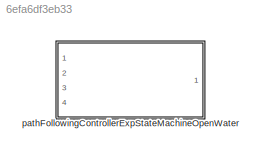
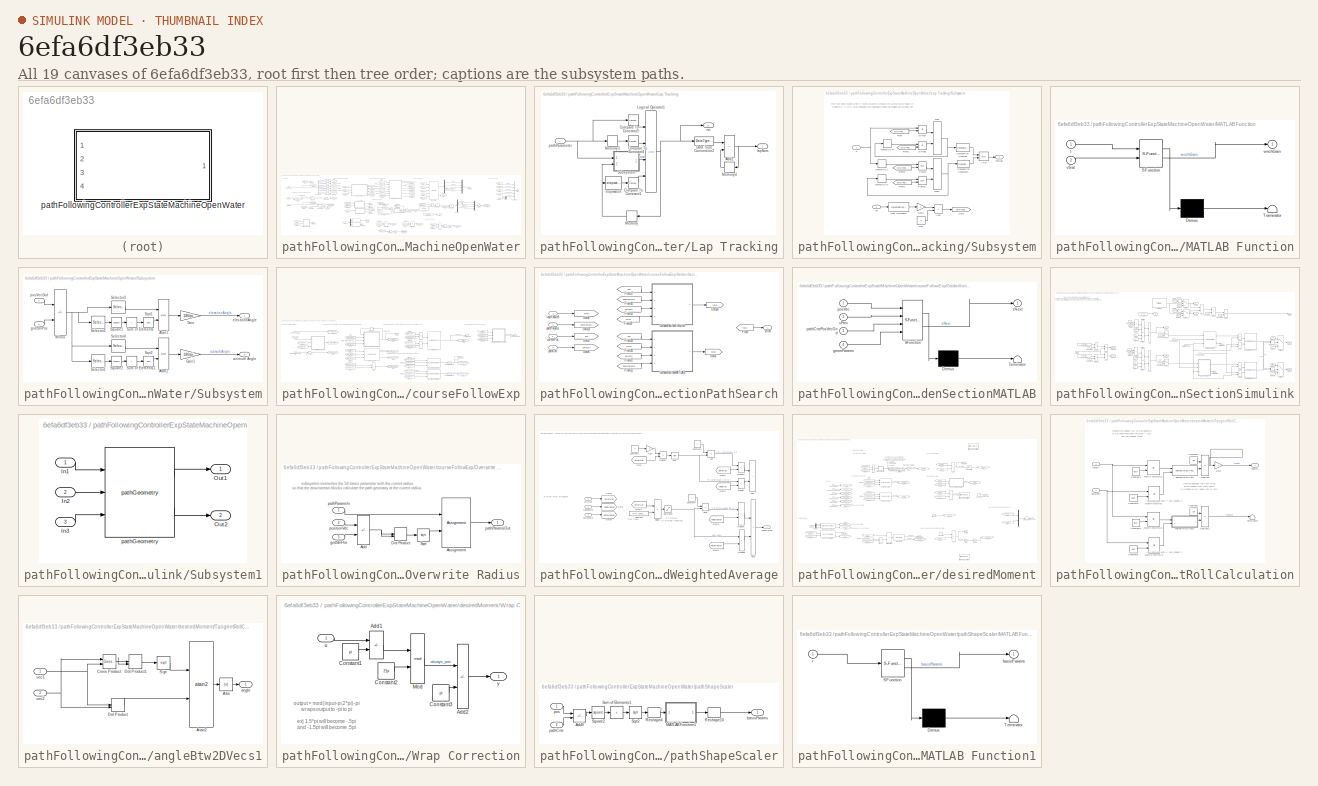
[diagram: thumbnail index - all 19 canvases of the model, root first then tree order]
MODEL slx_6efa6df3eb33
KIND library
CONFIG AbsTol = auto
CONFIG EnableMultiTasking = off
CONFIG FixedStep = auto
CONFIG MaxStep = auto
CONFIG MinStep = auto
CONFIG RelTol = 1e-3
CONFIG SampleTimeConstraint = Unconstrained
CONFIG Solver = VariableStepAuto
CONFIG SolverName = VariableStepAuto
CONFIG StartTime = 0.0
CONFIG StopTime = 10.0
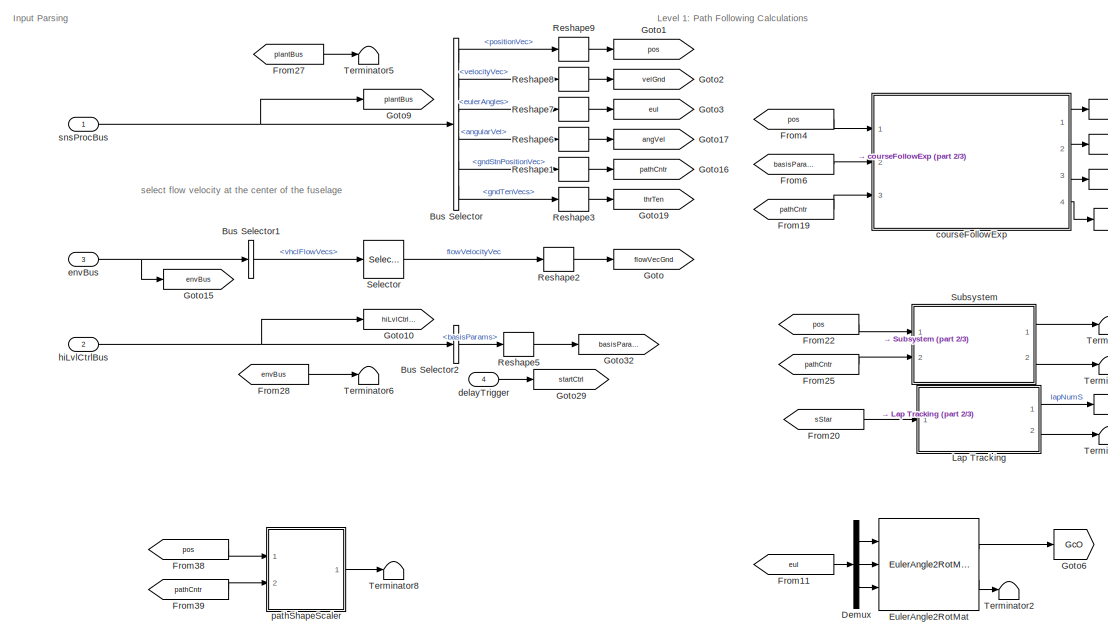
[diagram: pathFollowingControllerExpStateMachineOpenWater - part 1/3, left side, full height]
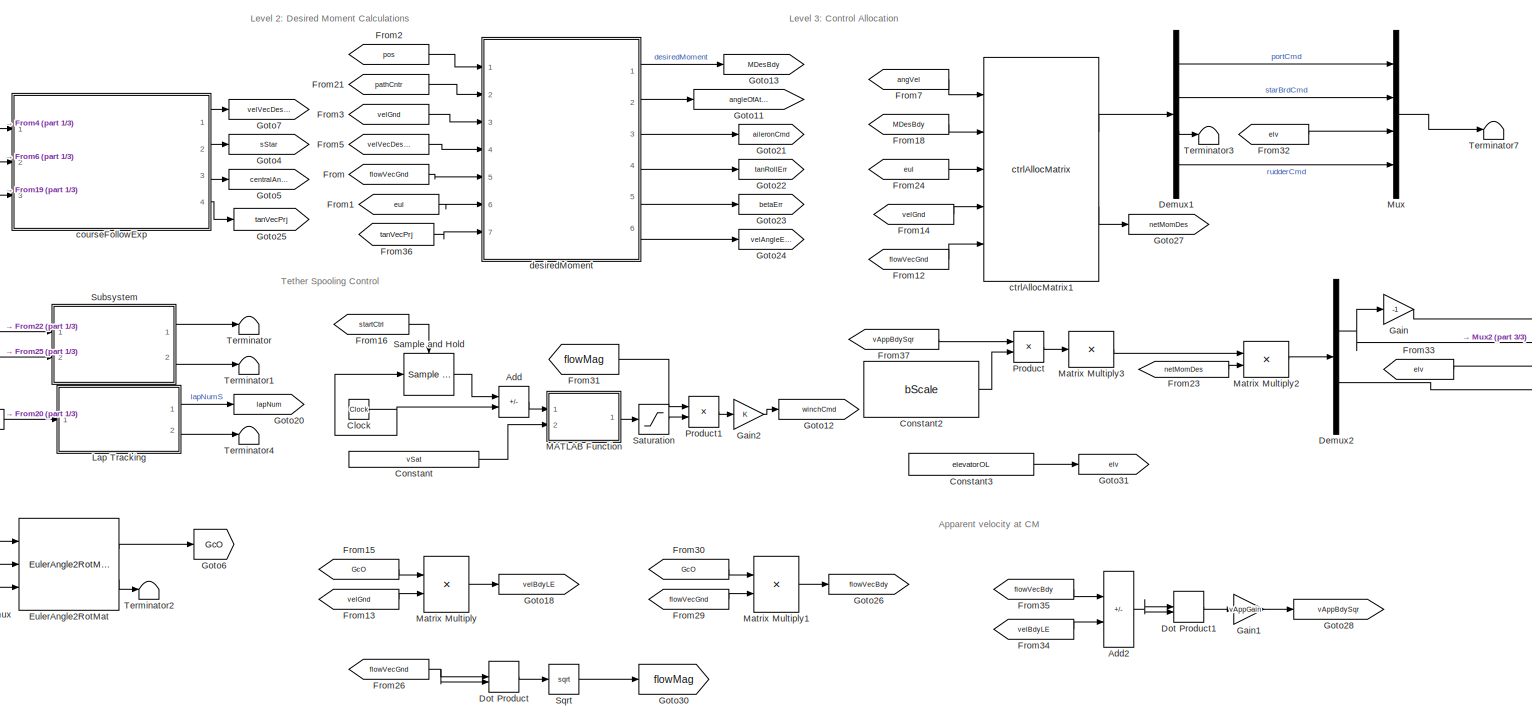
[diagram: pathFollowingControllerExpStateMachineOpenWater - part 2/3, center side, full height]
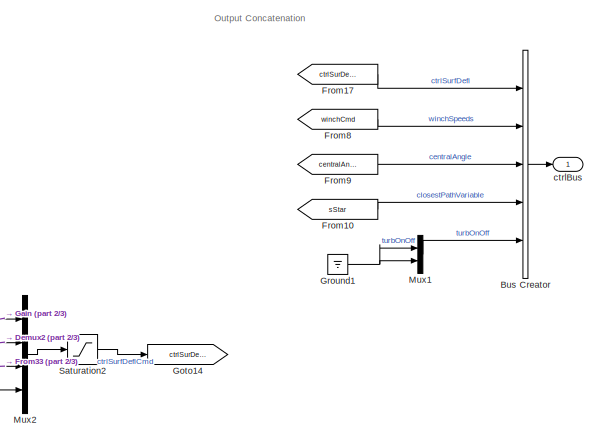
[diagram: pathFollowingControllerExpStateMachineOpenWater - part 3/3, top right region]
BLOCK [SubSystem] pathFollowingControllerExpStateMachineOpenWater
  InitFcn = initializeBussesFromBlock(gcb)
  LoadFcn = initializeBussesFromBlock(gcb)
  MinAlgLoopOccurrences = on
  Ports = [4, 1]
  RequestExecContextInheritance = off
  StartFcn = initializeBussesFromBlock(gcb)
  VariantControl = strcmpi(FLIGHTCONTROLLER,'pathFollowingControllerMantaBandLin')
BLOCK [Sum] pathFollowingControllerExpStateMachineOpenWater/Add
  IconShape = rectangular
  Inputs = -+
  Ports = [2, 1]
BLOCK [Sum] pathFollowingControllerExpStateMachineOpenWater/Add2
  IconShape = rectangular
  Inputs = +-
  Ports = [2, 1]
BLOCK [BusCreator] pathFollowingControllerExpStateMachineOpenWater/Bus Creator
  DisplayOption = bar
  InheritFromInputs = off
  Inputs = 5
  OutDataTypeStr = Bus: fltCtrlBus
  Ports = [5, 1]
BLOCK [BusSelector] pathFollowingControllerExpStateMachineOpenWater/Bus Selector
  OutputSignals = positionVec,velocityVec,eulerAngles,angularVel,gndStnPositionVec,gndTenVecs
  Ports = [1, 6]
BLOCK [BusSelector] pathFollowingControllerExpStateMachineOpenWater/Bus Selector1
  OutputSignals = vhclFlowVecs
  Ports = [1, 1]
BLOCK [BusSelector] pathFollowingControllerExpStateMachineOpenWater/Bus Selector2
  OutputSignals = basisParams
  Ports = [1, 1]
BLOCK [Clock] pathFollowingControllerExpStateMachineOpenWater/Clock
BLOCK [Constant] pathFollowingControllerExpStateMachineOpenWater/Constant
  Value = vSat
BLOCK [Constant] pathFollowingControllerExpStateMachineOpenWater/Constant2
  Value = bScale
BLOCK [Constant] pathFollowingControllerExpStateMachineOpenWater/Constant3
  Value = elevatorOL
BLOCK [Demux] pathFollowingControllerExpStateMachineOpenWater/Demux
  Outputs = 3
  Ports = [1, 3]
BLOCK [Demux] pathFollowingControllerExpStateMachineOpenWater/Demux1
  Ports = [1, 4]
BLOCK [Demux] pathFollowingControllerExpStateMachineOpenWater/Demux2
  Outputs = 2
  Ports = [1, 2]
BLOCK [DotProduct] pathFollowingControllerExpStateMachineOpenWater/Dot Product
  OutDataTypeStr = Inherit: Inherit via internal rule
BLOCK [DotProduct] pathFollowingControllerExpStateMachineOpenWater/Dot Product1
  OutDataTypeStr = Inherit: Inherit via internal rule
BLOCK [Reference] pathFollowingControllerExpStateMachineOpenWater/EulerAngle2RotMat  REF=eulAng2RotMat_ul/EulerAngle2RotMat
  Ports = [3, 2]
  SourceBlock = eulAng2RotMat_ul/EulerAngle2RotMat
  SourceType = SubSystem
BLOCK [From] pathFollowingControllerExpStateMachineOpenWater/From
  GotoTag = flowVecGnd
BLOCK [From] pathFollowingControllerExpStateMachineOpenWater/From1
  GotoTag = eul
BLOCK [From] pathFollowingControllerExpStateMachineOpenWater/From10
  GotoTag = sStar
BLOCK [From] pathFollowingControllerExpStateMachineOpenWater/From11
  GotoTag = eul
BLOCK [From] pathFollowingControllerExpStateMachineOpenWater/From12
  GotoTag = flowVecGnd
BLOCK [From] pathFollowingControllerExpStateMachineOpenWater/From13
  GotoTag = velGnd
BLOCK [From] pathFollowingControllerExpStateMachineOpenWater/From14
  GotoTag = velGnd
BLOCK [From] pathFollowingControllerExpStateMachineOpenWater/From15
  GotoTag = GcO
BLOCK [From] pathFollowingControllerExpStateMachineOpenWater/From16
  GotoTag = startCtrl
BLOCK [From] pathFollowingControllerExpStateMachineOpenWater/From17
  GotoTag = ctrlSurDefl
BLOCK [From] pathFollowingControllerExpStateMachineOpenWater/From18
  GotoTag = MDesBdy
BLOCK [From] pathFollowingControllerExpStateMachineOpenWater/From19
  GotoTag = pathCntr
BLOCK [From] pathFollowingControllerExpStateMachineOpenWater/From2
  GotoTag = pos
BLOCK [From] pathFollowingControllerExpStateMachineOpenWater/From20
  GotoTag = sStar
BLOCK [From] pathFollowingControllerExpStateMachineOpenWater/From21
  GotoTag = pathCntr
BLOCK [From] pathFollowingControllerExpStateMachineOpenWater/From22
  GotoTag = pos
BLOCK [From] pathFollowingControllerExpStateMachineOpenWater/From23
  GotoTag = netMomDes
BLOCK [From] pathFollowingControllerExpStateMachineOpenWater/From24
  GotoTag = eul
BLOCK [From] pathFollowingControllerExpStateMachineOpenWater/From25
  GotoTag = pathCntr
BLOCK [From] pathFollowingControllerExpStateMachineOpenWater/From26
  GotoTag = flowVecGnd
BLOCK [From] pathFollowingControllerExpStateMachineOpenWater/From27
  GotoTag = plantBus
BLOCK [From] pathFollowingControllerExpStateMachineOpenWater/From28
  GotoTag = envBus
BLOCK [From] pathFollowingControllerExpStateMachineOpenWater/From29
  GotoTag = flowVecGnd
BLOCK [From] pathFollowingControllerExpStateMachineOpenWater/From3
  GotoTag = velGnd
BLOCK [From] pathFollowingControllerExpStateMachineOpenWater/From30
  GotoTag = GcO
BLOCK [From] pathFollowingControllerExpStateMachineOpenWater/From31
  GotoTag = flowMag
BLOCK [From] pathFollowingControllerExpStateMachineOpenWater/From32
  GotoTag = elv
BLOCK [From] pathFollowingControllerExpStateMachineOpenWater/From33
  GotoTag = elv
BLOCK [From] pathFollowingControllerExpStateMachineOpenWater/From34
  GotoTag = velBdyLE
BLOCK [From] pathFollowingControllerExpStateMachineOpenWater/From35
  GotoTag = flowVecBdy
BLOCK [From] pathFollowingControllerExpStateMachineOpenWater/From36
  GotoTag = tanVecPrj
BLOCK [From] pathFollowingControllerExpStateMachineOpenWater/From37
  GotoTag = vAppBdySqr
BLOCK [From] pathFollowingControllerExpStateMachineOpenWater/From38
  GotoTag = pos
BLOCK [From] pathFollowingControllerExpStateMachineOpenWater/From39
  GotoTag = pathCntr
BLOCK [From] pathFollowingControllerExpStateMachineOpenWater/From4
  GotoTag = pos
BLOCK [From] pathFollowingControllerExpStateMachineOpenWater/From5
  GotoTag = velVecDesGnd
BLOCK [From] pathFollowingControllerExpStateMachineOpenWater/From6
  GotoTag = basisParams
BLOCK [From] pathFollowingControllerExpStateMachineOpenWater/From7
  GotoTag = angVel
BLOCK [From] pathFollowingControllerExpStateMachineOpenWater/From8
  GotoTag = winchCmd
BLOCK [From] pathFollowingControllerExpStateMachineOpenWater/From9
  GotoTag = centralAngle
BLOCK [Gain] pathFollowingControllerExpStateMachineOpenWater/Gain
  Gain = -1
BLOCK [Gain] pathFollowingControllerExpStateMachineOpenWater/Gain1
  Gain = vAppGain
BLOCK [Gain] pathFollowingControllerExpStateMachineOpenWater/Gain2
BLOCK [Goto] pathFollowingControllerExpStateMachineOpenWater/Goto
  GotoTag = flowVecGnd
BLOCK [Goto] pathFollowingControllerExpStateMachineOpenWater/Goto1
  GotoTag = pos
BLOCK [Goto] pathFollowingControllerExpStateMachineOpenWater/Goto10
  GotoTag = hiLvlCtrlBus
BLOCK [Goto] pathFollowingControllerExpStateMachineOpenWater/Goto11
  GotoTag = angleOfAttack
BLOCK [Goto] pathFollowingControllerExpStateMachineOpenWater/Goto12
  GotoTag = winchCmd
BLOCK [Goto] pathFollowingControllerExpStateMachineOpenWater/Goto13
  GotoTag = MDesBdy
BLOCK [Goto] pathFollowingControllerExpStateMachineOpenWater/Goto14
  GotoTag = ctrlSurDefl
BLOCK [Goto] pathFollowingControllerExpStateMachineOpenWater/Goto15
  GotoTag = envBus
BLOCK [Goto] pathFollowingControllerExpStateMachineOpenWater/Goto16
  GotoTag = pathCntr
BLOCK [Goto] pathFollowingControllerExpStateMachineOpenWater/Goto17
  GotoTag = angVel
BLOCK [Goto] pathFollowingControllerExpStateMachineOpenWater/Goto18
  GotoTag = velBdyLE
BLOCK [Goto] pathFollowingControllerExpStateMachineOpenWater/Goto19
  GotoTag = thrTen
BLOCK [Goto] pathFollowingControllerExpStateMachineOpenWater/Goto2
  GotoTag = velGnd
BLOCK [Goto] pathFollowingControllerExpStateMachineOpenWater/Goto20
  GotoTag = lapNum
BLOCK [Goto] pathFollowingControllerExpStateMachineOpenWater/Goto21
  GotoTag = aileronCmd
BLOCK [Goto] pathFollowingControllerExpStateMachineOpenWater/Goto22
  GotoTag = tanRollErr
BLOCK [Goto] pathFollowingControllerExpStateMachineOpenWater/Goto23
  GotoTag = betaErr
BLOCK [Goto] pathFollowingControllerExpStateMachineOpenWater/Goto24
  GotoTag = velAngleErr
BLOCK [Goto] pathFollowingControllerExpStateMachineOpenWater/Goto25
  GotoTag = tanVecPrj
BLOCK [Goto] pathFollowingControllerExpStateMachineOpenWater/Goto26
  GotoTag = flowVecBdy
BLOCK [Goto] pathFollowingControllerExpStateMachineOpenWater/Goto27
  GotoTag = netMomDes
BLOCK [Goto] pathFollowingControllerExpStateMachineOpenWater/Goto28
  GotoTag = vAppBdySqr
BLOCK [Goto] pathFollowingControllerExpStateMachineOpenWater/Goto29
  GotoTag = startCtrl
BLOCK [Goto] pathFollowingControllerExpStateMachineOpenWater/Goto3
  GotoTag = eul
BLOCK [Goto] pathFollowingControllerExpStateMachineOpenWater/Goto30
  GotoTag = flowMag
BLOCK [Goto] pathFollowingControllerExpStateMachineOpenWater/Goto31
  GotoTag = elv
BLOCK [Goto] pathFollowingControllerExpStateMachineOpenWater/Goto32
  GotoTag = basisParams
BLOCK [Goto] pathFollowingControllerExpStateMachineOpenWater/Goto4
  GotoTag = sStar
BLOCK [Goto] pathFollowingControllerExpStateMachineOpenWater/Goto5
  GotoTag = centralAngle
BLOCK [Goto] pathFollowingControllerExpStateMachineOpenWater/Goto6
  GotoTag = GcO
BLOCK [Goto] pathFollowingControllerExpStateMachineOpenWater/Goto7
  GotoTag = velVecDesGnd
BLOCK [Goto] pathFollowingControllerExpStateMachineOpenWater/Goto9
  GotoTag = plantBus
BLOCK [Ground] pathFollowingControllerExpStateMachineOpenWater/Ground1
BLOCK [SubSystem] pathFollowingControllerExpStateMachineOpenWater/Lap Tracking
  Ports = [1, 2]
  RequestExecContextInheritance = off
BLOCK [Sum] pathFollowingControllerExpStateMachineOpenWater/Lap Tracking/Add2
  IconShape = rectangular
  Ports = [2, 1]
BLOCK [Reference] pathFollowingControllerExpStateMachineOpenWater/Lap Tracking/Compare To Constant1  REF=simulink/Logic and Bit
Operations/Compare
To Constant
  Ports = [1, 1]
  SourceBlock = simulink/Logic and Bit\nOperations/Compare\nTo Constant
  SourceProductBaseCode = SL
  SourceType = Compare To Constant
BLOCK [Reference] pathFollowingControllerExpStateMachineOpenWater/Lap Tracking/Compare To Constant3  REF=simulink/Logic and Bit
Operations/Compare
To Constant
  Ports = [1, 1]
  SourceBlock = simulink/Logic and Bit\nOperations/Compare\nTo Constant
  SourceProductBaseCode = SL
  SourceType = Compare To Constant
BLOCK [Reference] pathFollowingControllerExpStateMachineOpenWater/Lap Tracking/Compare To Constant4  REF=simulink/Logic and Bit
Operations/Compare
To Constant
  Ports = [1, 1]
  SourceBlock = simulink/Logic and Bit\nOperations/Compare\nTo Constant
  SourceProductBaseCode = SL
  SourceType = Compare To Constant
BLOCK [DataTypeConversion] pathFollowingControllerExpStateMachineOpenWater/Lap Tracking/Data Type Conversion2
  OutDataTypeStr = double
  RndMeth = Floor
  SaturateOnIntegerOverflow = off
BLOCK [Logic] pathFollowingControllerExpStateMachineOpenWater/Lap Tracking/Logical Operator1
  AllPortsSameDT = off
  Inputs = 4
  OutDataTypeStr = boolean
  Ports = [4, 1]
BLOCK [Memory] pathFollowingControllerExpStateMachineOpenWater/Lap Tracking/Memory
  InitialCondition = false
BLOCK [Memory] pathFollowingControllerExpStateMachineOpenWater/Lap Tracking/Memory3
BLOCK [Memory] pathFollowingControllerExpStateMachineOpenWater/Lap Tracking/Memory4
BLOCK [SubSystem] pathFollowingControllerExpStateMachineOpenWater/Lap Tracking/Subsystem
  Ports = [2, 1]
  RequestExecContextInheritance = off
BLOCK [Logic] pathFollowingControllerExpStateMachineOpenWater/Lap Tracking/Subsystem/AND
  AllPortsSameDT = off
  OutDataTypeStr = boolean
  Ports = [2, 1]
BLOCK [Sum] pathFollowingControllerExpStateMachineOpenWater/Lap Tracking/Subsystem/Add
  IconShape = rectangular
  Ports = [2, 1]
BLOCK [DataTypeConversion] pathFollowingControllerExpStateMachineOpenWater/Lap Tracking/Subsystem/Cast To Double
  OutDataTypeStr = double
  RndMeth = Floor
  SaturateOnIntegerOverflow = off
BLOCK [Reference] pathFollowingControllerExpStateMachineOpenWater/Lap Tracking/Subsystem/Compare To Constant  REF=simulink/Logic and Bit
Operations/Compare
To Constant
  Ports = [1, 1]
  SourceBlock = simulink/Logic and Bit\nOperations/Compare\nTo Constant
  SourceProductBaseCode = SL
  SourceType = Compare To Constant
BLOCK [Reference] pathFollowingControllerExpStateMachineOpenWater/Lap Tracking/Subsystem/Compare To Constant1  REF=simulink/Logic and Bit
Operations/Compare
To Constant
  Ports = [1, 1]
  SourceBlock = simulink/Logic and Bit\nOperations/Compare\nTo Constant
  SourceProductBaseCode = SL
  SourceType = Compare To Constant
BLOCK [Product] pathFollowingControllerExpStateMachineOpenWater/Lap Tracking/Subsystem/Divide
  Inputs = **
  Ports = [2, 1]
BLOCK [Product] pathFollowingControllerExpStateMachineOpenWater/Lap Tracking/Subsystem/Divide1
  Inputs = **
  Ports = [2, 1]
BLOCK [From] pathFollowingControllerExpStateMachineOpenWater/Lap Tracking/Subsystem/From
  GotoTag = zeroIfReset
BLOCK [From] pathFollowingControllerExpStateMachineOpenWater/Lap Tracking/Subsystem/From1
  GotoTag = zeroIfReset
BLOCK [From] pathFollowingControllerExpStateMachineOpenWater/Lap Tracking/Subsystem/From2
  GotoTag = zeroIfReset
BLOCK [From] pathFollowingControllerExpStateMachineOpenWater/Lap Tracking/Subsystem/From3
  GotoTag = zeroIfReset
BLOCK [Gain] pathFollowingControllerExpStateMachineOpenWater/Lap Tracking/Subsystem/Gain
  Gain = -1
BLOCK [Goto] pathFollowingControllerExpStateMachineOpenWater/Lap Tracking/Subsystem/Goto
  GotoTag = zeroIfReset
BLOCK [MinMax] pathFollowingControllerExpStateMachineOpenWater/Lap Tracking/Subsystem/Max
  Function = max
  Inputs = 2
  Ports = [2, 1]
BLOCK [MinMax] pathFollowingControllerExpStateMachineOpenWater/Lap Tracking/Subsystem/Max1
  Inputs = 2
  Ports = [2, 1]
BLOCK [Constant] pathFollowingControllerExpStateMachineOpenWater/Lap Tracking/Subsystem/One
  OutDataTypeStr = Inherit: Inherit via back propagation
BLOCK [Math] pathFollowingControllerExpStateMachineOpenWater/Lap Tracking/Subsystem/Power
  Operator = pow
  Ports = [2, 1]
BLOCK [Math] pathFollowingControllerExpStateMachineOpenWater/Lap Tracking/Subsystem/Power1
  Operator = pow
  Ports = [2, 1]
BLOCK [Inport] pathFollowingControllerExpStateMachineOpenWater/Lap Tracking/Subsystem/S
BLOCK [Memory] pathFollowingControllerExpStateMachineOpenWater/Lap Tracking/Subsystem/memoryIC1
  InitialCondition = 1
BLOCK [Memory] pathFollowingControllerExpStateMachineOpenWater/Lap Tracking/Subsystem/memoryIC=0
BLOCK [Memory] pathFollowingControllerExpStateMachineOpenWater/Lap Tracking/Subsystem/memoryIC=1
  InitialCondition = 1
BLOCK [Outport] pathFollowingControllerExpStateMachineOpenWater/Lap Tracking/Subsystem/realLap
BLOCK [Inport] pathFollowingControllerExpStateMachineOpenWater/Lap Tracking/Subsystem/rst
  Port = 2
BLOCK [Outport] pathFollowingControllerExpStateMachineOpenWater/Lap Tracking/lapNum
  VectorParamsAs1DForOutWhenUnconnected = off
BLOCK [Inport] pathFollowingControllerExpStateMachineOpenWater/Lap Tracking/pathParameter
BLOCK [Outport] pathFollowingControllerExpStateMachineOpenWater/Lap Tracking/rst
  Port = 2
  VectorParamsAs1DForOutWhenUnconnected = off
BLOCK [Reference] pathFollowingControllerExpStateMachineOpenWater/Lap Tracking/stopwatch  REF=stopwatch_ul/stopwatch  (lib defined in slx_5231e8830116, slx_6b86a6863970)
  Ports = [1, 1]
  SourceBlock = stopwatch_ul/stopwatch
  SourceType = SubSystem
BLOCK [SubSystem] pathFollowingControllerExpStateMachineOpenWater/MATLAB Function
  ErrorFcn = Stateflow.Translate.translate
  PermitHierarchicalResolution = ExplicitOnly
  Ports = [2, 1]
  RequestExecContextInheritance = off
  SFBlockType = MATLAB Function
  TreatAsAtomicUnit = on
BLOCK [Demux] pathFollowingControllerExpStateMachineOpenWater/MATLAB Function/ Demux 
  Outputs = 1
  Ports = [1, 1]
BLOCK [S-Function] pathFollowingControllerExpStateMachineOpenWater/MATLAB Function/ SFunction 
  EnableBusSupport = off
  FunctionName = sf_sfun
  PortCounts = [2 2]
  Ports = [2, 2]
  SFcnIsStateOwnerBlock = off
  SFunctionDeploymentMode = off
  Tag = Stateflow S-Function 8
BLOCK [Terminator] pathFollowingControllerExpStateMachineOpenWater/MATLAB Function/ Terminator 
BLOCK [Inport] pathFollowingControllerExpStateMachineOpenWater/MATLAB Function/t
BLOCK [Inport] pathFollowingControllerExpStateMachineOpenWater/MATLAB Function/vSat
  Port = 2
BLOCK [Outport] pathFollowingControllerExpStateMachineOpenWater/MATLAB Function/wnchGain
BLOCK [Product] pathFollowingControllerExpStateMachineOpenWater/Matrix Multiply
  Multiplication = Matrix(*)
  Ports = [2, 1]
BLOCK [Product] pathFollowingControllerExpStateMachineOpenWater/Matrix Multiply1
  Multiplication = Matrix(*)
  Ports = [2, 1]
BLOCK [Product] pathFollowingControllerExpStateMachineOpenWater/Matrix Multiply2
  Multiplication = Matrix(*)
  Ports = [2, 1]
BLOCK [Product] pathFollowingControllerExpStateMachineOpenWater/Matrix Multiply3
  Inputs = /
  Multiplication = Matrix(*)
  Ports = [1, 1]
BLOCK [Mux] pathFollowingControllerExpStateMachineOpenWater/Mux
  DisplayOption = bar
  Ports = [4, 1]
BLOCK [Mux] pathFollowingControllerExpStateMachineOpenWater/Mux1
  DisplayOption = bar
  Inputs = 2
  Ports = [2, 1]
BLOCK [Mux] pathFollowingControllerExpStateMachineOpenWater/Mux2
  DisplayOption = bar
  Ports = [4, 1]
BLOCK [Product] pathFollowingControllerExpStateMachineOpenWater/Product
  Ports = [2, 1]
BLOCK [Product] pathFollowingControllerExpStateMachineOpenWater/Product1
  Ports = [2, 1]
BLOCK [Reshape] pathFollowingControllerExpStateMachineOpenWater/Reshape1
  OutputDimensionality = Column vector (2-D)
  Ports = [1, 1]
BLOCK [Reshape] pathFollowingControllerExpStateMachineOpenWater/Reshape2
  OutputDimensionality = Column vector (2-D)
  Ports = [1, 1]
BLOCK [Reshape] pathFollowingControllerExpStateMachineOpenWater/Reshape3
  OutputDimensionality = Column vector (2-D)
  Ports = [1, 1]
BLOCK [Reshape] pathFollowingControllerExpStateMachineOpenWater/Reshape5
  OutputDimensionality = Column vector (2-D)
  Ports = [1, 1]
BLOCK [Reshape] pathFollowingControllerExpStateMachineOpenWater/Reshape6
  OutputDimensionality = Column vector (2-D)
  Ports = [1, 1]
BLOCK [Reshape] pathFollowingControllerExpStateMachineOpenWater/Reshape7
  OutputDimensionality = Column vector (2-D)
  Ports = [1, 1]
BLOCK [Reshape] pathFollowingControllerExpStateMachineOpenWater/Reshape8
  OutputDimensionality = Column vector (2-D)
  Ports = [1, 1]
BLOCK [Reshape] pathFollowingControllerExpStateMachineOpenWater/Reshape9
  OutputDimensionality = Column vector (2-D)
  Ports = [1, 1]
BLOCK [Reference] pathFollowingControllerExpStateMachineOpenWater/Sample and Hold  REF=dspsigops/Sample
and Hold
  Ports = [1, 1, 0, 1]
  SourceBlock = dspsigops/Sample\nand Hold
  SourceProductBaseCode = DS
  SourceType = Sample and Hold
BLOCK [Saturate] pathFollowingControllerExpStateMachineOpenWater/Saturation
  LowerLimit = 0
  UpperLimit = fltCtrl.vSat.Value
BLOCK [Saturate] pathFollowingControllerExpStateMachineOpenWater/Saturation2
  LowerLimit = pathCtrl.controlSigMax.lowerLimit.Value
  UpperLimit = pathCtrl.controlSigMax.upperLimit.Value
BLOCK [Selector] pathFollowingControllerExpStateMachineOpenWater/Selector
  IndexOptions = Select all,Index vector (dialog)
  Indices = [1 3],5
  InputPortWidth = 3
  NumberOfDimensions = 2
  OutputSizes = 1,1
  Ports = [1, 1]
BLOCK [Sqrt] pathFollowingControllerExpStateMachineOpenWater/Sqrt
BLOCK [SubSystem] pathFollowingControllerExpStateMachineOpenWater/Subsystem
  Ports = [2, 2]
  RequestExecContextInheritance = off
BLOCK [Trigonometry] pathFollowingControllerExpStateMachineOpenWater/Subsystem/Atan1
  Operator = atan2
  Ports = [2, 1]
BLOCK [Trigonometry] pathFollowingControllerExpStateMachineOpenWater/Subsystem/Atan2
  Operator = atan2
  Ports = [2, 1]
BLOCK [Gain] pathFollowingControllerExpStateMachineOpenWater/Subsystem/Gain
  Gain = 180/pi
BLOCK [Gain] pathFollowingControllerExpStateMachineOpenWater/Subsystem/Gain1
  Gain = 180/pi
BLOCK [Sum] pathFollowingControllerExpStateMachineOpenWater/Subsystem/Minus
  IconShape = rectangular
  Inputs = +-
  Ports = [2, 1]
BLOCK [Selector] pathFollowingControllerExpStateMachineOpenWater/Subsystem/Selector1
  IndexOptions = Index vector (dialog)
  Indices = 1
  InputPortWidth = 3
  OutputSizes = 1
  Ports = [1, 1]
BLOCK [Selector] pathFollowingControllerExpStateMachineOpenWater/Subsystem/Selector2
  IndexOptions = Index vector (dialog)
  Indices = [1 2]
  InputPortWidth = 3
  OutputSizes = 1
  Ports = [1, 1]
BLOCK [Selector] pathFollowingControllerExpStateMachineOpenWater/Subsystem/Selector3
  IndexOptions = Index vector (dialog)
  Indices = 3
  InputPortWidth = 3
  OutputSizes = 1
  Ports = [1, 1]
BLOCK [Selector] pathFollowingControllerExpStateMachineOpenWater/Subsystem/Selector4
  IndexOptions = Index vector (dialog)
  Indices = 2
  InputPortWidth = 3
  OutputSizes = 1
  Ports = [1, 1]
BLOCK [Sqrt] pathFollowingControllerExpStateMachineOpenWater/Subsystem/Sqrt1
BLOCK [Sqrt] pathFollowingControllerExpStateMachineOpenWater/Subsystem/Sqrt2
BLOCK [Math] pathFollowingControllerExpStateMachineOpenWater/Subsystem/Square1
  Operator = square
  Ports = [1, 1]
  SignedPower = on
BLOCK [Math] pathFollowingControllerExpStateMachineOpenWater/Subsystem/Square2
  Operator = square
  Ports = [1, 1]
  SignedPower = on
BLOCK [Sum] pathFollowingControllerExpStateMachineOpenWater/Subsystem/Sum of Elements
  IconShape = rectangular
  Inputs = +
  Ports = [1, 1]
BLOCK [Sum] pathFollowingControllerExpStateMachineOpenWater/Subsystem/Sum of Elements1
  IconShape = rectangular
  Inputs = +
  Ports = [1, 1]
BLOCK [Outport] pathFollowingControllerExpStateMachineOpenWater/Subsystem/azimuth Angle
  Port = 2
BLOCK [Outport] pathFollowingControllerExpStateMachineOpenWater/Subsystem/elevationAngle
BLOCK [Inport] pathFollowingControllerExpStateMachineOpenWater/Subsystem/gndStnPos
  Port = 2
BLOCK [Inport] pathFollowingControllerExpStateMachineOpenWater/Subsystem/posVecGnd
BLOCK [Terminator] pathFollowingControllerExpStateMachineOpenWater/Terminator
BLOCK [Terminator] pathFollowingControllerExpStateMachineOpenWater/Terminator1
BLOCK [Terminator] pathFollowingControllerExpStateMachineOpenWater/Terminator2
BLOCK [Terminator] pathFollowingControllerExpStateMachineOpenWater/Terminator3
BLOCK [Terminator] pathFollowingControllerExpStateMachineOpenWater/Terminator4
BLOCK [Terminator] pathFollowingControllerExpStateMachineOpenWater/Terminator5
BLOCK [Terminator] pathFollowingControllerExpStateMachineOpenWater/Terminator6
BLOCK [Terminator] pathFollowingControllerExpStateMachineOpenWater/Terminator7
BLOCK [Terminator] pathFollowingControllerExpStateMachineOpenWater/Terminator8
BLOCK [SubSystem] pathFollowingControllerExpStateMachineOpenWater/courseFollowExp
  AncestorBlock = courseFollowExp_cl/courseFollowExp
  Ports = [3, 4]
  RequestExecContextInheritance = off
BLOCK [Goto] pathFollowingControllerExpStateMachineOpenWater/courseFollowExp/ 
  GotoTag = pathParams
BLOCK [Sum] pathFollowingControllerExpStateMachineOpenWater/courseFollowExp/Add
  IconShape = rectangular
  Inputs = +-
  Ports = [2, 1]
BLOCK [Sum] pathFollowingControllerExpStateMachineOpenWater/courseFollowExp/Add1
  IconShape = rectangular
  Inputs = +-
  Ports = [2, 1]
BLOCK [Sum] pathFollowingControllerExpStateMachineOpenWater/courseFollowExp/Add2
  IconShape = rectangular
  Inputs = +-
  Ports = [2, 1]
BLOCK [From] pathFollowingControllerExpStateMachineOpenWater/courseFollowExp/From
  GotoTag = pathParams
BLOCK [From] pathFollowingControllerExpStateMachineOpenWater/courseFollowExp/From1
  GotoTag = perpVecGnd
BLOCK [From] pathFollowingControllerExpStateMachineOpenWater/courseFollowExp/From10
  GotoTag = currentPathVar
BLOCK [From] pathFollowingControllerExpStateMachineOpenWater/courseFollowExp/From11
  GotoTag = pathParams
BLOCK [From] pathFollowingControllerExpStateMachineOpenWater/courseFollowExp/From12
  GotoTag = pathSphereCntr
BLOCK [From] pathFollowingControllerExpStateMachineOpenWater/courseFollowExp/From13
  GotoTag = pathSphereCntr
BLOCK [From] pathFollowingControllerExpStateMachineOpenWater/courseFollowExp/From14
  GotoTag = pathPosVecGnd
BLOCK [From] pathFollowingControllerExpStateMachineOpenWater/courseFollowExp/From15
  GotoTag = vhclPosVecGnd
BLOCK [From] pathFollowingControllerExpStateMachineOpenWater/courseFollowExp/From16
  GotoTag = pathSphereCntr
BLOCK [From] pathFollowingControllerExpStateMachineOpenWater/courseFollowExp/From17
  GotoTag = pathSphereCntr
BLOCK [From] pathFollowingControllerExpStateMachineOpenWater/courseFollowExp/From18
  GotoTag = pathSphereCntr
BLOCK [From] pathFollowingControllerExpStateMachineOpenWater/courseFollowExp/From19
  GotoTag = vhclPosVecGnd
BLOCK [From] pathFollowingControllerExpStateMachineOpenWater/courseFollowExp/From2
  GotoTag = tanVecGnd
BLOCK [From] pathFollowingControllerExpStateMachineOpenWater/courseFollowExp/From22
  GotoTag = pathPosVecGnd
BLOCK [From] pathFollowingControllerExpStateMachineOpenWater/courseFollowExp/From23
  GotoTag = vhclPosVecGnd
BLOCK [From] pathFollowingControllerExpStateMachineOpenWater/courseFollowExp/From24
  GotoTag = cntrlAng
BLOCK [From] pathFollowingControllerExpStateMachineOpenWater/courseFollowExp/From25
  GotoTag = tanVecPrj
BLOCK [From] pathFollowingControllerExpStateMachineOpenWater/courseFollowExp/From26
  GotoTag = perpVecPrj
BLOCK [From] pathFollowingControllerExpStateMachineOpenWater/courseFollowExp/From3
  GotoTag = vhclPosVecGnd
BLOCK [From] pathFollowingControllerExpStateMachineOpenWater/courseFollowExp/From4
  GotoTag = vhclPosVecGnd
BLOCK [From] pathFollowingControllerExpStateMachineOpenWater/courseFollowExp/From5
  GotoTag = vhclPosVecGnd
BLOCK [From] pathFollowingControllerExpStateMachineOpenWater/courseFollowExp/From7
  GotoTag = pathSphereCntr
BLOCK [From] pathFollowingControllerExpStateMachineOpenWater/courseFollowExp/From9
  GotoTag = pathSphereCntr
BLOCK [SubSystem] pathFollowingControllerExpStateMachineOpenWater/courseFollowExp/GoldenSectionPathSearch
  Ports = [4, 1]
  RequestExecContextInheritance = off
  TreatAsAtomicUnit = on
BLOCK [From] pathFollowingControllerExpStateMachineOpenWater/courseFollowExp/GoldenSectionPathSearch/From
  GotoTag = sStar
BLOCK [From] pathFollowingControllerExpStateMachineOpenWater/courseFollowExp/GoldenSectionPathSearch/From10
  GotoTag = geomParams
BLOCK [From] pathFollowingControllerExpStateMachineOpenWater/courseFollowExp/GoldenSectionPathSearch/From11
  Commented = on
  GotoTag = geomParams
BLOCK [From] pathFollowingControllerExpStateMachineOpenWater/courseFollowExp/GoldenSectionPathSearch/From12
  GotoTag = pathCntr
BLOCK [From] pathFollowingControllerExpStateMachineOpenWater/courseFollowExp/GoldenSectionPathSearch/From17
  GotoTag = pos
BLOCK [From] pathFollowingControllerExpStateMachineOpenWater/courseFollowExp/GoldenSectionPathSearch/From27
  Commented = on
  GotoTag = pathCntr
BLOCK [From] pathFollowingControllerExpStateMachineOpenWater/courseFollowExp/GoldenSectionPathSearch/From28
  Commented = on
  GotoTag = pos
BLOCK [From] pathFollowingControllerExpStateMachineOpenWater/courseFollowExp/GoldenSectionPathSearch/From29
  GotoTag = sPrev
BLOCK [From] pathFollowingControllerExpStateMachineOpenWater/courseFollowExp/GoldenSectionPathSearch/From30
  Commented = on
  GotoTag = sPrev
BLOCK [SubSystem] pathFollowingControllerExpStateMachineOpenWater/courseFollowExp/GoldenSectionPathSearch/GoldenSectionMATLAB
  Commented = on
  ErrorFcn = Stateflow.Translate.translate
  PermitHierarchicalResolution = ExplicitOnly
  Ports = [4, 1]
  RequestExecContextInheritance = off
  SFBlockType = MATLAB Function
  TreatAsAtomicUnit = on
BLOCK [Demux] pathFollowingControllerExpStateMachineOpenWater/courseFollowExp/GoldenSectionPathSearch/GoldenSectionMATLAB/ Demux 
  Outputs = 1
  Ports = [1, 1]
BLOCK [S-Function] pathFollowingControllerExpStateMachineOpenWater/courseFollowExp/GoldenSectionPathSearch/GoldenSectionMATLAB/ SFunction 
  EnableBusSupport = off
  FunctionName = sf_sfun
  Parameters = pathVarTol,searchWidth
  PortCounts = [4 2]
  Ports = [4, 2]
  SFcnIsStateOwnerBlock = off
  SFunctionDeploymentMode = off
  Tag = Stateflow S-Function 1
BLOCK [Terminator] pathFollowingControllerExpStateMachineOpenWater/courseFollowExp/GoldenSectionPathSearch/GoldenSectionMATLAB/ Terminator 
BLOCK [Inport] pathFollowingControllerExpStateMachineOpenWater/courseFollowExp/GoldenSectionPathSearch/GoldenSectionMATLAB/geomParams
  Port = 4
BLOCK [Inport] pathFollowingControllerExpStateMachineOpenWater/courseFollowExp/GoldenSectionPathSearch/GoldenSectionMATLAB/pathCntrPosVecGnd
  Port = 3
BLOCK [Inport] pathFollowingControllerExpStateMachineOpenWater/courseFollowExp/GoldenSectionPathSearch/GoldenSectionMATLAB/posVec
BLOCK [Outport] pathFollowingControllerExpStateMachineOpenWater/courseFollowExp/GoldenSectionPathSearch/GoldenSectionMATLAB/sNext
BLOCK [Inport] pathFollowingControllerExpStateMachineOpenWater/courseFollowExp/GoldenSectionPathSearch/GoldenSectionMATLAB/sPrev
  Port = 2
BLOCK [SubSystem] pathFollowingControllerExpStateMachineOpenWater/courseFollowExp/GoldenSectionPathSearch/GoldenSectionSimulink
  Ports = [4, 1]
  RequestExecContextInheritance = off
BLOCK [Sum] pathFollowingControllerExpStateMachineOpenWater/courseFollowExp/GoldenSectionPathSearch/GoldenSectionSimulink/Add
  IconShape = rectangular
  Ports = [2, 1]
BLOCK [Sum] pathFollowingControllerExpStateMachineOpenWater/courseFollowExp/GoldenSectionPathSearch/GoldenSectionSimulink/Add1
  IconShape = rectangular
  Ports = [2, 1]
BLOCK [Sum] pathFollowingControllerExpStateMachineOpenWater/courseFollowExp/GoldenSectionPathSearch/GoldenSectionSimulink/Add2
  IconShape = rectangular
  Ports = [2, 1]
BLOCK [Sum] pathFollowingControllerExpStateMachineOpenWater/courseFollowExp/GoldenSectionPathSearch/GoldenSectionSimulink/Add3
  IconShape = rectangular
  Inputs = -+
  Ports = [2, 1]
BLOCK [Sum] pathFollowingControllerExpStateMachineOpenWater/courseFollowExp/GoldenSectionPathSearch/GoldenSectionSimulink/Add4
  IconShape = rectangular
  Ports = [2, 1]
BLOCK [Sum] pathFollowingControllerExpStateMachineOpenWater/courseFollowExp/GoldenSectionPathSearch/GoldenSectionSimulink/Add5
  IconShape = rectangular
  Inputs = +-
  Ports = [2, 1]
BLOCK [Sum] pathFollowingControllerExpStateMachineOpenWater/courseFollowExp/GoldenSectionPathSearch/GoldenSectionSimulink/Add6
  IconShape = rectangular
  Inputs = +-
  Ports = [2, 1]
BLOCK [Sum] pathFollowingControllerExpStateMachineOpenWater/courseFollowExp/GoldenSectionPathSearch/GoldenSectionSimulink/Add7
  IconShape = rectangular
  Inputs = +-
  Ports = [2, 1]
BLOCK [Sum] pathFollowingControllerExpStateMachineOpenWater/courseFollowExp/GoldenSectionPathSearch/GoldenSectionSimulink/Add8
  IconShape = rectangular
  Inputs = +-
  Ports = [2, 1]
BLOCK [Constant] pathFollowingControllerExpStateMachineOpenWater/courseFollowExp/GoldenSectionPathSearch/GoldenSectionSimulink/Constant
  Value = 1-.38197
BLOCK [Constant] pathFollowingControllerExpStateMachineOpenWater/courseFollowExp/GoldenSectionPathSearch/GoldenSectionSimulink/Constant1
BLOCK [Constant] pathFollowingControllerExpStateMachineOpenWater/courseFollowExp/GoldenSectionPathSearch/GoldenSectionSimulink/Constant10
BLOCK [Constant] pathFollowingControllerExpStateMachineOpenWater/courseFollowExp/GoldenSectionPathSearch/GoldenSectionSimulink/Constant2
BLOCK [Constant] pathFollowingControllerExpStateMachineOpenWater/courseFollowExp/GoldenSectionPathSearch/GoldenSectionSimulink/Constant3
  Value = 2
BLOCK [Constant] pathFollowingControllerExpStateMachineOpenWater/courseFollowExp/GoldenSectionPathSearch/GoldenSectionSimulink/Constant4
  Value = pathCtrl.searchSize.Value
BLOCK [Constant] pathFollowingControllerExpStateMachineOpenWater/courseFollowExp/GoldenSectionPathSearch/GoldenSectionSimulink/Constant5
BLOCK [Constant] pathFollowingControllerExpStateMachineOpenWater/courseFollowExp/GoldenSectionPathSearch/GoldenSectionSimulink/Constant6
  Value = pathCtrl.searchSize.Value
BLOCK [Constant] pathFollowingControllerExpStateMachineOpenWater/courseFollowExp/GoldenSectionPathSearch/GoldenSectionSimulink/Constant7
  Value = 2
BLOCK [Constant] pathFollowingControllerExpStateMachineOpenWater/courseFollowExp/GoldenSectionPathSearch/GoldenSectionSimulink/Constant8
BLOCK [Constant] pathFollowingControllerExpStateMachineOpenWater/courseFollowExp/GoldenSectionPathSearch/GoldenSectionSimulink/Constant9
  Value = 2
BLOCK [Product] pathFollowingControllerExpStateMachineOpenWater/courseFollowExp/GoldenSectionPathSearch/GoldenSectionSimulink/Divide
  Inputs = */
  Ports = [2, 1]
BLOCK [Product] pathFollowingControllerExpStateMachineOpenWater/courseFollowExp/GoldenSectionPathSearch/GoldenSectionSimulink/Divide1
  Inputs = */
  Ports = [2, 1]
BLOCK [Product] pathFollowingControllerExpStateMachineOpenWater/courseFollowExp/GoldenSectionPathSearch/GoldenSectionSimulink/Divide2
  Inputs = */
  Ports = [2, 1]
BLOCK [ForIterator] pathFollowingControllerExpStateMachineOpenWater/courseFollowExp/GoldenSectionPathSearch/GoldenSectionSimulink/For Iterator
  IterationLimit = 25
  Ports = [0, 1]
BLOCK [From] pathFollowingControllerExpStateMachineOpenWater/courseFollowExp/GoldenSectionPathSearch/GoldenSectionSimulink/From
  GotoTag = tau
BLOCK [From] pathFollowingControllerExpStateMachineOpenWater/courseFollowExp/GoldenSectionPathSearch/GoldenSectionSimulink/From1
  GotoTag = xl
BLOCK [From] pathFollowingControllerExpStateMachineOpenWater/courseFollowExp/GoldenSectionPathSearch/GoldenSectionSimulink/From18
  GotoTag = xl
BLOCK [From] pathFollowingControllerExpStateMachineOpenWater/courseFollowExp/GoldenSectionPathSearch/GoldenSectionSimulink/From19
  GotoTag = xone
BLOCK [From] pathFollowingControllerExpStateMachineOpenWater/courseFollowExp/GoldenSectionPathSearch/GoldenSectionSimulink/From2
  GotoTag = tau
BLOCK [From] pathFollowingControllerExpStateMachineOpenWater/courseFollowExp/GoldenSectionPathSearch/GoldenSectionSimulink/From20
  GotoTag = xtwo
BLOCK [From] pathFollowingControllerExpStateMachineOpenWater/courseFollowExp/GoldenSectionPathSearch/GoldenSectionSimulink/From21
  GotoTag = xr
BLOCK [From] pathFollowingControllerExpStateMachineOpenWater/courseFollowExp/GoldenSectionPathSearch/GoldenSectionSimulink/From22
  GotoTag = ini_xl
BLOCK [From] pathFollowingControllerExpStateMachineOpenWater/courseFollowExp/GoldenSectionPathSearch/GoldenSectionSimulink/From23
  GotoTag = ini_xr
BLOCK [From] pathFollowingControllerExpStateMachineOpenWater/courseFollowExp/GoldenSectionPathSearch/GoldenSectionSimulink/From3
  GotoTag = xr
BLOCK [From] pathFollowingControllerExpStateMachineOpenWater/courseFollowExp/GoldenSectionPathSearch/GoldenSectionSimulink/From4
  GotoTag = tau
BLOCK [From] pathFollowingControllerExpStateMachineOpenWater/courseFollowExp/GoldenSectionPathSearch/GoldenSectionSimulink/From5
  GotoTag = xl
BLOCK [From] pathFollowingControllerExpStateMachineOpenWater/courseFollowExp/GoldenSectionPathSearch/GoldenSectionSimulink/From6
  GotoTag = tau
BLOCK [From] pathFollowingControllerExpStateMachineOpenWater/courseFollowExp/GoldenSectionPathSearch/GoldenSectionSimulink/From7
  GotoTag = xr
BLOCK [From] pathFollowingControllerExpStateMachineOpenWater/courseFollowExp/GoldenSectionPathSearch/GoldenSectionSimulink/From8
  GotoTag = newxr
BLOCK [From] pathFollowingControllerExpStateMachineOpenWater/courseFollowExp/GoldenSectionPathSearch/GoldenSectionSimulink/From9
  GotoTag = newxl
BLOCK [Goto] pathFollowingControllerExpStateMachineOpenWater/courseFollowExp/GoldenSectionPathSearch/GoldenSectionSimulink/Goto
  GotoTag = tau
BLOCK [Goto] pathFollowingControllerExpStateMachineOpenWater/courseFollowExp/GoldenSectionPathSearch/GoldenSectionSimulink/Goto1
  GotoTag = xl
BLOCK [Goto] pathFollowingControllerExpStateMachineOpenWater/courseFollowExp/GoldenSectionPathSearch/GoldenSectionSimulink/Goto10
  GotoTag = xtwo
BLOCK [Goto] pathFollowingControllerExpStateMachineOpenWater/courseFollowExp/GoldenSectionPathSearch/GoldenSectionSimulink/Goto11
  GotoTag = ini_xl
BLOCK [Goto] pathFollowingControllerExpStateMachineOpenWater/courseFollowExp/GoldenSectionPathSearch/GoldenSectionSimulink/Goto12
  GotoTag = ini_xr
BLOCK [Goto] pathFollowingControllerExpStateMachineOpenWater/courseFollowExp/GoldenSectionPathSearch/GoldenSectionSimulink/Goto2
  GotoTag = xr
BLOCK [Goto] pathFollowingControllerExpStateMachineOpenWater/courseFollowExp/GoldenSectionPathSearch/GoldenSectionSimulink/Goto4
  GotoTag = newxl
BLOCK [Goto] pathFollowingControllerExpStateMachineOpenWater/courseFollowExp/GoldenSectionPathSearch/GoldenSectionSimulink/Goto5
  GotoTag = newxr
BLOCK [Goto] pathFollowingControllerExpStateMachineOpenWater/courseFollowExp/GoldenSectionPathSearch/GoldenSectionSimulink/Goto9
  GotoTag = xone
BLOCK [RelationalOperator] pathFollowingControllerExpStateMachineOpenWater/courseFollowExp/GoldenSectionPathSearch/GoldenSectionSimulink/GreaterThan
  InputSameDT = off
  Operator = >
  OutDataTypeStr = boolean
  Ports = [2, 1]
  RndMeth = Simplest
BLOCK [RelationalOperator] pathFollowingControllerExpStateMachineOpenWater/courseFollowExp/GoldenSectionPathSearch/GoldenSectionSimulink/Less Than
  InputSameDT = off
  Operator = <
  OutDataTypeStr = boolean
  Ports = [2, 1]
  RndMeth = Simplest
BLOCK [Memory] pathFollowingControllerExpStateMachineOpenWater/courseFollowExp/GoldenSectionPathSearch/GoldenSectionSimulink/Memory
  InheritSampleTime = on
BLOCK [Memory] pathFollowingControllerExpStateMachineOpenWater/courseFollowExp/GoldenSectionPathSearch/GoldenSectionSimulink/Memory1
  InheritSampleTime = on
BLOCK [Math] pathFollowingControllerExpStateMachineOpenWater/courseFollowExp/GoldenSectionPathSearch/GoldenSectionSimulink/Mod
  Operator = mod
  Ports = [2, 1]
  SignedPower = on
BLOCK [Math] pathFollowingControllerExpStateMachineOpenWater/courseFollowExp/GoldenSectionPathSearch/GoldenSectionSimulink/Mod1
  Operator = mod
  Ports = [2, 1]
  SignedPower = on
BLOCK [Math] pathFollowingControllerExpStateMachineOpenWater/courseFollowExp/GoldenSectionPathSearch/GoldenSectionSimulink/Mod2
  Operator = mod
  Ports = [2, 1]
  SignedPower = on
BLOCK [Product] pathFollowingControllerExpStateMachineOpenWater/courseFollowExp/GoldenSectionPathSearch/GoldenSectionSimulink/Multiply
  Ports = [2, 1]
BLOCK [Product] pathFollowingControllerExpStateMachineOpenWater/courseFollowExp/GoldenSectionPathSearch/GoldenSectionSimulink/Multiply1
  Ports = [2, 1]
BLOCK [Product] pathFollowingControllerExpStateMachineOpenWater/courseFollowExp/GoldenSectionPathSearch/GoldenSectionSimulink/Multiply2
  Ports = [2, 1]
BLOCK [Product] pathFollowingControllerExpStateMachineOpenWater/courseFollowExp/GoldenSectionPathSearch/GoldenSectionSimulink/Multiply3
  Ports = [2, 1]
BLOCK [Outport] pathFollowingControllerExpStateMachineOpenWater/courseFollowExp/GoldenSectionPathSearch/GoldenSectionSimulink/Out1
BLOCK [SubSystem] pathFollowingControllerExpStateMachineOpenWater/courseFollowExp/GoldenSectionPathSearch/GoldenSectionSimulink/Subsystem1
  Ports = [3, 2]
  RequestExecContextInheritance = off
BLOCK [Inport] pathFollowingControllerExpStateMachineOpenWater/courseFollowExp/GoldenSectionPathSearch/GoldenSectionSimulink/Subsystem1/In1
BLOCK [Inport] pathFollowingControllerExpStateMachineOpenWater/courseFollowExp/GoldenSectionPathSearch/GoldenSectionSimulink/Subsystem1/In2
  Port = 2
BLOCK [Inport] pathFollowingControllerExpStateMachineOpenWater/courseFollowExp/GoldenSectionPathSearch/GoldenSectionSimulink/Subsystem1/In3
  Port = 3
BLOCK [Outport] pathFollowingControllerExpStateMachineOpenWater/courseFollowExp/GoldenSectionPathSearch/GoldenSectionSimulink/Subsystem1/Out1
  VectorParamsAs1DForOutWhenUnconnected = off
BLOCK [Outport] pathFollowingControllerExpStateMachineOpenWater/courseFollowExp/GoldenSectionPathSearch/GoldenSectionSimulink/Subsystem1/Out2
  Port = 2
  VectorParamsAs1DForOutWhenUnconnected = off
BLOCK [Reference] pathFollowingControllerExpStateMachineOpenWater/courseFollowExp/GoldenSectionPathSearch/GoldenSectionSimulink/Subsystem1/pathGeometry  REF=pathGeometry_ul/pathGeometry
  Ports = [3, 2]
  SourceBlock = pathGeometry_ul/pathGeometry
  SourceType = SubSystem
BLOCK [Sum] pathFollowingControllerExpStateMachineOpenWater/courseFollowExp/GoldenSectionPathSearch/GoldenSectionSimulink/Subtract
  IconShape = rectangular
  Inputs = +-
  Ports = [2, 1]
BLOCK [Sum] pathFollowingControllerExpStateMachineOpenWater/courseFollowExp/GoldenSectionPathSearch/GoldenSectionSimulink/Subtract1
  IconShape = rectangular
  Inputs = +-
  Ports = [2, 1]
BLOCK [Switch] pathFollowingControllerExpStateMachineOpenWater/courseFollowExp/GoldenSectionPathSearch/GoldenSectionSimulink/Switch
  Criteria = u2 > Threshold
  InputSameDT = off
  SaturateOnIntegerOverflow = off
  Threshold = 1
BLOCK [Switch] pathFollowingControllerExpStateMachineOpenWater/courseFollowExp/GoldenSectionPathSearch/GoldenSectionSimulink/Switch1
  Criteria = u2 > Threshold
  InputSameDT = off
  SaturateOnIntegerOverflow = off
  Threshold = 1
BLOCK [Switch] pathFollowingControllerExpStateMachineOpenWater/courseFollowExp/GoldenSectionPathSearch/GoldenSectionSimulink/Switch2
  Criteria = u2 > Threshold
  InputSameDT = off
  SaturateOnIntegerOverflow = off
BLOCK [Switch] pathFollowingControllerExpStateMachineOpenWater/courseFollowExp/GoldenSectionPathSearch/GoldenSectionSimulink/Switch3
  Criteria = u2 > Threshold
  InputSameDT = off
  SaturateOnIntegerOverflow = off
BLOCK [Terminator] pathFollowingControllerExpStateMachineOpenWater/courseFollowExp/GoldenSectionPathSearch/GoldenSectionSimulink/Terminator
BLOCK [Terminator] pathFollowingControllerExpStateMachineOpenWater/courseFollowExp/GoldenSectionPathSearch/GoldenSectionSimulink/Terminator1
BLOCK [Reference] pathFollowingControllerExpStateMachineOpenWater/courseFollowExp/GoldenSectionPathSearch/GoldenSectionSimulink/angleBtw2DVecs  REF=angleBtw2Vecs_ul/angleBtw2DVecs
  Ports = [2, 1]
  SourceBlock = angleBtw2Vecs_ul/angleBtw2DVecs
  SourceType = SubSystem
BLOCK [Reference] pathFollowingControllerExpStateMachineOpenWater/courseFollowExp/GoldenSectionPathSearch/GoldenSectionSimulink/angleBtw2DVecs1  REF=angleBtw2Vecs_ul/angleBtw2DVecs
  Ports = [2, 1]
  SourceBlock = angleBtw2Vecs_ul/angleBtw2DVecs
  SourceType = SubSystem
BLOCK [Inport] pathFollowingControllerExpStateMachineOpenWater/courseFollowExp/GoldenSectionPathSearch/GoldenSectionSimulink/cntrPtPosVec
  Port = 3
BLOCK [Inport] pathFollowingControllerExpStateMachineOpenWater/courseFollowExp/GoldenSectionPathSearch/GoldenSectionSimulink/geomParams
  Port = 2
BLOCK [Reference] pathFollowingControllerExpStateMachineOpenWater/courseFollowExp/GoldenSectionPathSearch/GoldenSectionSimulink/pathGeometry  REF=pathGeometry_ul/pathGeometry
  Ports = [3, 2]
  SourceBlock = pathGeometry_ul/pathGeometry
  SourceType = SubSystem
BLOCK [Inport] pathFollowingControllerExpStateMachineOpenWater/courseFollowExp/GoldenSectionPathSearch/GoldenSectionSimulink/posVecGnd
BLOCK [Inport] pathFollowingControllerExpStateMachineOpenWater/courseFollowExp/GoldenSectionPathSearch/GoldenSectionSimulink/sPrev
  Port = 4
BLOCK [Goto] pathFollowingControllerExpStateMachineOpenWater/courseFollowExp/GoldenSectionPathSearch/Goto1
  Commented = on
  GotoTag = sStar
BLOCK [Goto] pathFollowingControllerExpStateMachineOpenWater/courseFollowExp/GoldenSectionPathSearch/Goto13
  GotoTag = geomParams
BLOCK [Goto] pathFollowingControllerExpStateMachineOpenWater/courseFollowExp/GoldenSectionPathSearch/Goto14
  GotoTag = sStar
BLOCK [Goto] pathFollowingControllerExpStateMachineOpenWater/courseFollowExp/GoldenSectionPathSearch/Goto3
  GotoTag = pos
BLOCK [Goto] pathFollowingControllerExpStateMachineOpenWater/courseFollowExp/GoldenSectionPathSearch/Goto6
  GotoTag = pathCntr
BLOCK [Goto] pathFollowingControllerExpStateMachineOpenWater/courseFollowExp/GoldenSectionPathSearch/Goto8
  GotoTag = sPrev
BLOCK [Inport] pathFollowingControllerExpStateMachineOpenWater/courseFollowExp/GoldenSectionPathSearch/currentPos
  Port = 3
BLOCK [Inport] pathFollowingControllerExpStateMachineOpenWater/courseFollowExp/GoldenSectionPathSearch/lastKnownS
BLOCK [Inport] pathFollowingControllerExpStateMachineOpenWater/courseFollowExp/GoldenSectionPathSearch/pathCntr
  Port = 4
BLOCK [Inport] pathFollowingControllerExpStateMachineOpenWater/courseFollowExp/GoldenSectionPathSearch/pathParams
  Port = 2
BLOCK [Outport] pathFollowingControllerExpStateMachineOpenWater/courseFollowExp/GoldenSectionPathSearch/sStar
  InitialOutput = pathCtrl.initPathVar.Value
  VectorParamsAs1DForOutWhenUnconnected = off
BLOCK [Goto] pathFollowingControllerExpStateMachineOpenWater/courseFollowExp/Goto10
  GotoTag = tanVecPrj
BLOCK [Goto] pathFollowingControllerExpStateMachineOpenWater/courseFollowExp/Goto11
  GotoTag = perpVecPrj
BLOCK [Goto] pathFollowingControllerExpStateMachineOpenWater/courseFollowExp/Goto2
  GotoTag = pathPosVecGnd
BLOCK [Goto] pathFollowingControllerExpStateMachineOpenWater/courseFollowExp/Goto4
  GotoTag = tanVecGnd
BLOCK [Goto] pathFollowingControllerExpStateMachineOpenWater/courseFollowExp/Goto5
  GotoTag = pathSphereCntr
BLOCK [Goto] pathFollowingControllerExpStateMachineOpenWater/courseFollowExp/Goto6
  GotoTag = currentPathVar
BLOCK [Goto] pathFollowingControllerExpStateMachineOpenWater/courseFollowExp/Goto7
  GotoTag = perpVecGnd
BLOCK [Goto] pathFollowingControllerExpStateMachineOpenWater/courseFollowExp/Goto8
  GotoTag = vhclPosVecGnd
BLOCK [Goto] pathFollowingControllerExpStateMachineOpenWater/courseFollowExp/Goto9
  GotoTag = cntrlAng
BLOCK [Memory] pathFollowingControllerExpStateMachineOpenWater/courseFollowExp/Memory1
  InitialCondition = pathCtrl.initPathVar.Value
BLOCK [SubSystem] pathFollowingControllerExpStateMachineOpenWater/courseFollowExp/Overwrite Radius
  Ports = [3, 1]
  RequestExecContextInheritance = off
BLOCK [Sum] pathFollowingControllerExpStateMachineOpenWater/courseFollowExp/Overwrite Radius/Add
  IconShape = rectangular
  Inputs = +-
  Ports = [2, 1]
BLOCK [Assignment] pathFollowingControllerExpStateMachineOpenWater/courseFollowExp/Overwrite Radius/Assignment
  DiagnosticForDimensions = Warning
  IndexOptions = Index vector (dialog),Assign all
  Indices = 5,5
  NumberOfDimensions = 2
  OutputSizes = 1,1
  Ports = [2, 1]
BLOCK [DotProduct] pathFollowingControllerExpStateMachineOpenWater/courseFollowExp/Overwrite Radius/Dot Product
  OutDataTypeStr = Inherit: Inherit via internal rule
BLOCK [Sqrt] pathFollowingControllerExpStateMachineOpenWater/courseFollowExp/Overwrite Radius/Sqrt
BLOCK [Inport] pathFollowingControllerExpStateMachineOpenWater/courseFollowExp/Overwrite Radius/gndStnPos
  Port = 3
BLOCK [Inport] pathFollowingControllerExpStateMachineOpenWater/courseFollowExp/Overwrite Radius/pathParamsIn
BLOCK [Outport] pathFollowingControllerExpStateMachineOpenWater/courseFollowExp/Overwrite Radius/pathParamsOut
  VectorParamsAs1DForOutWhenUnconnected = off
BLOCK [Inport] pathFollowingControllerExpStateMachineOpenWater/courseFollowExp/Overwrite Radius/positionVec
  Port = 2
BLOCK [Reshape] pathFollowingControllerExpStateMachineOpenWater/courseFollowExp/Reshape
  OutputDimensionality = Column vector (2-D)
  Ports = [1, 1]
BLOCK [Reference] pathFollowingControllerExpStateMachineOpenWater/courseFollowExp/TanFrameProjection  REF=tanFrameProjection_ul/TanFrameProjection
  Ports = [3, 1]
  SourceBlock = tanFrameProjection_ul/TanFrameProjection
  SourceType = SubSystem
BLOCK [Reference] pathFollowingControllerExpStateMachineOpenWater/courseFollowExp/TanFrameProjection1  REF=tanFrameProjection_ul/TanFrameProjection
  Ports = [3, 1]
  SourceBlock = tanFrameProjection_ul/TanFrameProjection
  SourceType = SubSystem
BLOCK [Reference] pathFollowingControllerExpStateMachineOpenWater/courseFollowExp/VectorNormalizer1  REF=vectorNormalizer_ul/VectorNormalizer

  Ports = [1, 1]
  SourceBlock = vectorNormalizer_ul/VectorNormalizer
  SourceType = SubSystem
BLOCK [Reference] pathFollowingControllerExpStateMachineOpenWater/courseFollowExp/VectorNormalizer2  REF=vectorNormalizer_ul/VectorNormalizer

  Ports = [1, 1]
  SourceBlock = vectorNormalizer_ul/VectorNormalizer
  SourceType = SubSystem
BLOCK [Reference] pathFollowingControllerExpStateMachineOpenWater/courseFollowExp/angleBtw2Vecs  REF=angleBtw2Vecs_ul/angleBtw2DVecs
  Ports = [2, 1]
  SourceBlock = angleBtw2Vecs_ul/angleBtw2DVecs
  SourceType = SubSystem
BLOCK [Outport] pathFollowingControllerExpStateMachineOpenWater/courseFollowExp/centralAngle
  Port = 3
  VectorParamsAs1DForOutWhenUnconnected = off
BLOCK [Inport] pathFollowingControllerExpStateMachineOpenWater/courseFollowExp/pathCntrPosVecGnd
  Port = 3
BLOCK [Reference] pathFollowingControllerExpStateMachineOpenWater/courseFollowExp/pathGeometry  REF=pathGeometry_ul/pathGeometry
  Ports = [3, 2]
  SourceBlock = pathGeometry_ul/pathGeometry
  SourceType = SubSystem
BLOCK [Inport] pathFollowingControllerExpStateMachineOpenWater/courseFollowExp/pathParams
  Port = 2
BLOCK [Outport] pathFollowingControllerExpStateMachineOpenWater/courseFollowExp/sStar
  Port = 2
  VectorParamsAs1DForOutWhenUnconnected = off
BLOCK [SubSystem] pathFollowingControllerExpStateMachineOpenWater/courseFollowExp/saturatedWeightedAverage
  Ports = [3, 1]
  RequestExecContextInheritance = off
BLOCK [Sum] pathFollowingControllerExpStateMachineOpenWater/courseFollowExp/saturatedWeightedAverage/Add
  Commented = on
  IconShape = rectangular
  Inputs = +-
  Ports = [2, 1]
BLOCK [Sum] pathFollowingControllerExpStateMachineOpenWater/courseFollowExp/saturatedWeightedAverage/Add1
  Commented = on
  IconShape = rectangular
  Ports = [2, 1]
BLOCK [Sum] pathFollowingControllerExpStateMachineOpenWater/courseFollowExp/saturatedWeightedAverage/Add2
  IconShape = rectangular
  Inputs = +-
  Ports = [2, 1]
BLOCK [Sum] pathFollowingControllerExpStateMachineOpenWater/courseFollowExp/saturatedWeightedAverage/Add3
  IconShape = rectangular
  Ports = [2, 1]
BLOCK [Constant] pathFollowingControllerExpStateMachineOpenWater/courseFollowExp/saturatedWeightedAverage/Constant
  Value = error_upper_lim
BLOCK [Constant] pathFollowingControllerExpStateMachineOpenWater/courseFollowExp/saturatedWeightedAverage/Constant1
  Commented = on
  Value = a
BLOCK [Constant] pathFollowingControllerExpStateMachineOpenWater/courseFollowExp/saturatedWeightedAverage/Constant2
  Commented = on
BLOCK [Constant] pathFollowingControllerExpStateMachineOpenWater/courseFollowExp/saturatedWeightedAverage/Constant4
BLOCK [Product] pathFollowingControllerExpStateMachineOpenWater/courseFollowExp/saturatedWeightedAverage/Divide
  Inputs = */
  Ports = [2, 1]
BLOCK [Math] pathFollowingControllerExpStateMachineOpenWater/courseFollowExp/saturatedWeightedAverage/Exp
  Commented = on
  Ports = [1, 1]
  SignedPower = on
BLOCK [From] pathFollowingControllerExpStateMachineOpenWater/courseFollowExp/saturatedWeightedAverage/From
  Commented = on
  GotoTag = errorVar
BLOCK [From] pathFollowingControllerExpStateMachineOpenWater/courseFollowExp/saturatedWeightedAverage/From1
  Commented = on
  GotoTag = perpVec
BLOCK [From] pathFollowingControllerExpStateMachineOpenWater/courseFollowExp/saturatedWeightedAverage/From2
  Commented = on
  GotoTag = tangVec
BLOCK [From] pathFollowingControllerExpStateMachineOpenWater/courseFollowExp/saturatedWeightedAverage/From3
  GotoTag = errorVar
BLOCK [From] pathFollowingControllerExpStateMachineOpenWater/courseFollowExp/saturatedWeightedAverage/From4
  GotoTag = perpVector
BLOCK [From] pathFollowingControllerExpStateMachineOpenWater/courseFollowExp/saturatedWeightedAverage/From6
  GotoTag = tangVector
BLOCK [Gain] pathFollowingControllerExpStateMachineOpenWater/courseFollowExp/saturatedWeightedAverage/Gain
  Commented = on
  Gain = -1
BLOCK [Goto] pathFollowingControllerExpStateMachineOpenWater/courseFollowExp/saturatedWeightedAverage/Goto
  GotoTag = tangVector
BLOCK [Goto] pathFollowingControllerExpStateMachineOpenWater/courseFollowExp/saturatedWeightedAverage/Goto1
  GotoTag = errorVar
BLOCK [Goto] pathFollowingControllerExpStateMachineOpenWater/courseFollowExp/saturatedWeightedAverage/Goto2
  GotoTag = perpVector
BLOCK [Product] pathFollowingControllerExpStateMachineOpenWater/courseFollowExp/saturatedWeightedAverage/Multiply
  Commented = on
  Ports = [2, 1]
BLOCK [Product] pathFollowingControllerExpStateMachineOpenWater/courseFollowExp/saturatedWeightedAverage/Multiply1
  Commented = on
  Ports = [2, 1]
BLOCK [Product] pathFollowingControllerExpStateMachineOpenWater/courseFollowExp/saturatedWeightedAverage/Multiply2
  Commented = on
  Ports = [2, 1]
BLOCK [Product] pathFollowingControllerExpStateMachineOpenWater/courseFollowExp/saturatedWeightedAverage/Multiply3
  Ports = [2, 1]
BLOCK [Product] pathFollowingControllerExpStateMachineOpenWater/courseFollowExp/saturatedWeightedAverage/Multiply5
  Ports = [2, 1]
BLOCK [Saturate] pathFollowingControllerExpStateMachineOpenWater/courseFollowExp/saturatedWeightedAverage/Saturation
  LowerLimit = 0
  UpperLimit = 1
BLOCK [Inport] pathFollowingControllerExpStateMachineOpenWater/courseFollowExp/saturatedWeightedAverage/errorVar 
BLOCK [Inport] pathFollowingControllerExpStateMachineOpenWater/courseFollowExp/saturatedWeightedAverage/perpVector 
  Port = 3
BLOCK [Inport] pathFollowingControllerExpStateMachineOpenWater/courseFollowExp/saturatedWeightedAverage/tangVector
  Port = 2
BLOCK [Outport] pathFollowingControllerExpStateMachineOpenWater/courseFollowExp/saturatedWeightedAverage/velVectorDes 
  VectorParamsAs1DForOutWhenUnconnected = off
BLOCK [Outport] pathFollowingControllerExpStateMachineOpenWater/courseFollowExp/tanVecPrj
  Port = 4
BLOCK [Outport] pathFollowingControllerExpStateMachineOpenWater/courseFollowExp/velVecDesGnd
  VectorParamsAs1DForOutWhenUnconnected = off
BLOCK [Inport] pathFollowingControllerExpStateMachineOpenWater/courseFollowExp/vhclPosVecGnd 
BLOCK [Reference] pathFollowingControllerExpStateMachineOpenWater/ctrlAllocMatrix1  REF=ctrlAllocMatrixExp_cl/ctrlAllocMatrix
  Ports = [5, 2]
  SourceBlock = ctrlAllocMatrixExp_cl/ctrlAllocMatrix
BLOCK [Outport] pathFollowingControllerExpStateMachineOpenWater/ctrlBus
  OutDataTypeStr = Bus: fltCtrlBus
  VectorParamsAs1DForOutWhenUnconnected = off
BLOCK [Inport] pathFollowingControllerExpStateMachineOpenWater/delayTrigger
  Port = 4
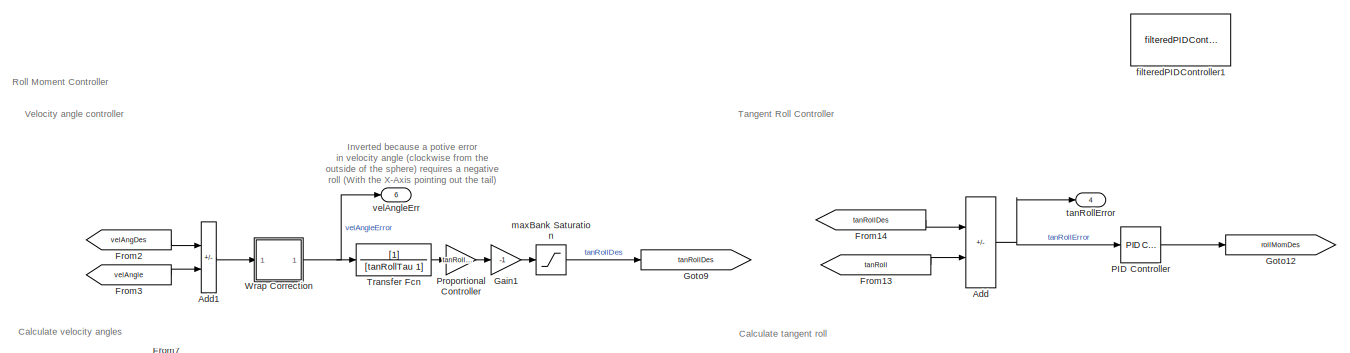
[diagram: pathFollowingControllerExpStateMachineOpenWater/desiredMoment - part 1/3, top center region]
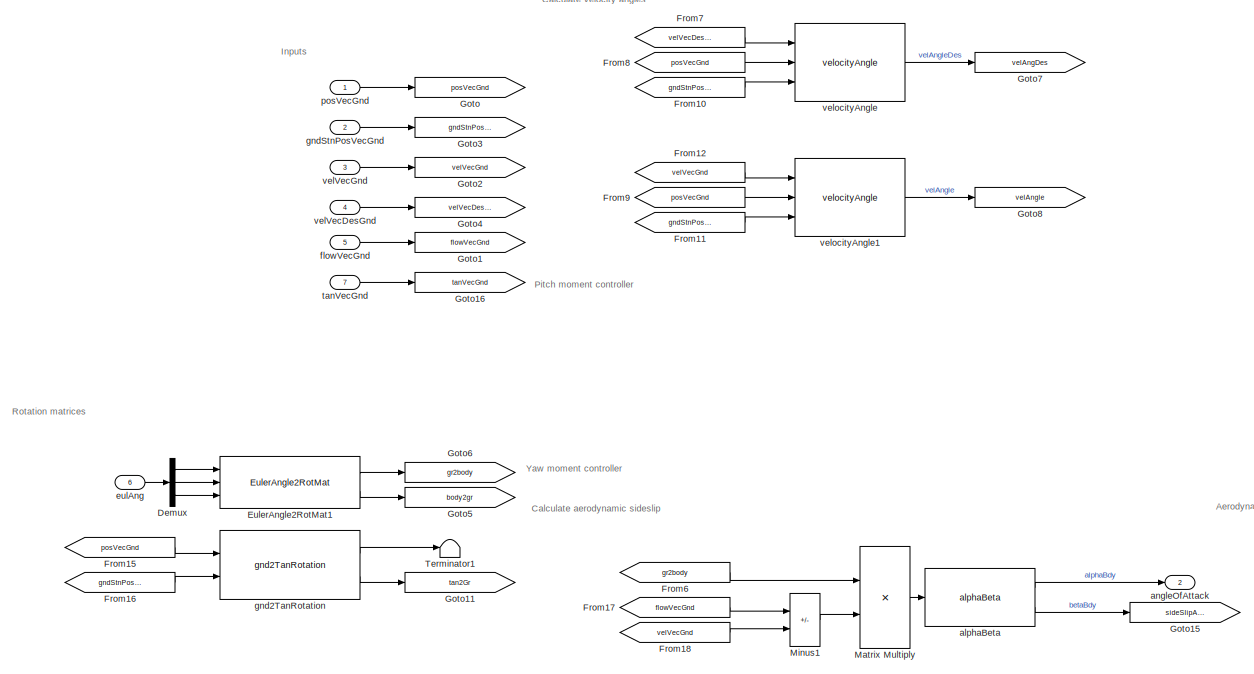
[diagram: pathFollowingControllerExpStateMachineOpenWater/desiredMoment - part 2/3, middle left region]
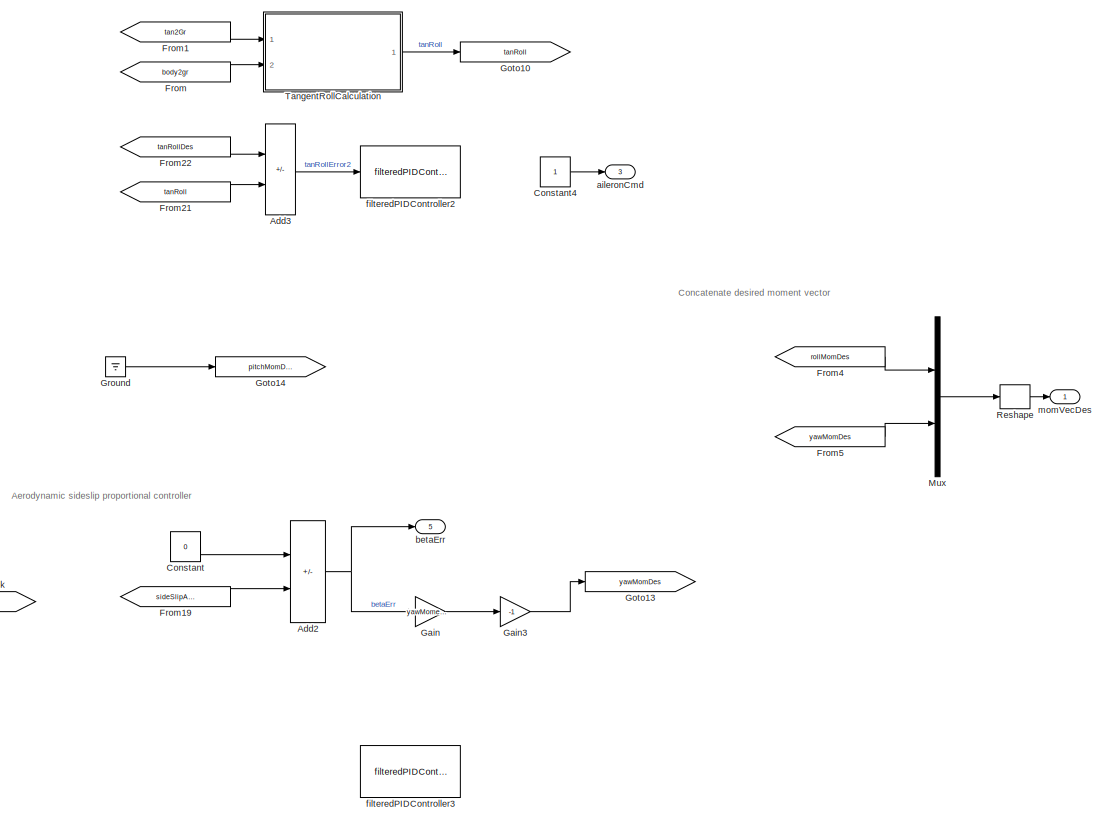
[diagram: pathFollowingControllerExpStateMachineOpenWater/desiredMoment - part 3/3, middle right region]
BLOCK [SubSystem] pathFollowingControllerExpStateMachineOpenWater/desiredMoment
  Ports = [7, 6]
  RequestExecContextInheritance = off
BLOCK [Sum] pathFollowingControllerExpStateMachineOpenWater/desiredMoment/Add
  IconShape = rectangular
  Inputs = +-
  Ports = [2, 1]
BLOCK [Sum] pathFollowingControllerExpStateMachineOpenWater/desiredMoment/Add1
  IconShape = rectangular
  Inputs = +-
  Ports = [2, 1]
BLOCK [Sum] pathFollowingControllerExpStateMachineOpenWater/desiredMoment/Add2
  IconShape = rectangular
  Inputs = +-
  Ports = [2, 1]
BLOCK [Sum] pathFollowingControllerExpStateMachineOpenWater/desiredMoment/Add3
  Commented = on
  IconShape = rectangular
  Inputs = +-
  Ports = [2, 1]
BLOCK [Constant] pathFollowingControllerExpStateMachineOpenWater/desiredMoment/Constant
  Value = 0
BLOCK [Constant] pathFollowingControllerExpStateMachineOpenWater/desiredMoment/Constant4
BLOCK [Demux] pathFollowingControllerExpStateMachineOpenWater/desiredMoment/Demux
  Outputs = 3
  Ports = [1, 3]
BLOCK [Reference] pathFollowingControllerExpStateMachineOpenWater/desiredMoment/EulerAngle2RotMat1  REF=eulAng2RotMat_ul/EulerAngle2RotMat
  Ports = [3, 2]
  SourceBlock = eulAng2RotMat_ul/EulerAngle2RotMat
  SourceType = SubSystem
BLOCK [From] pathFollowingControllerExpStateMachineOpenWater/desiredMoment/From
  GotoTag = body2gr
BLOCK [From] pathFollowingControllerExpStateMachineOpenWater/desiredMoment/From1
  GotoTag = tan2Gr
BLOCK [From] pathFollowingControllerExpStateMachineOpenWater/desiredMoment/From10
  GotoTag = gndStnPosVecGnd
BLOCK [From] pathFollowingControllerExpStateMachineOpenWater/desiredMoment/From11
  GotoTag = gndStnPosVecGnd
BLOCK [From] pathFollowingControllerExpStateMachineOpenWater/desiredMoment/From12
  GotoTag = velVecGnd
BLOCK [From] pathFollowingControllerExpStateMachineOpenWater/desiredMoment/From13
  GotoTag = tanRoll
BLOCK [From] pathFollowingControllerExpStateMachineOpenWater/desiredMoment/From14
  GotoTag = tanRollDes
BLOCK [From] pathFollowingControllerExpStateMachineOpenWater/desiredMoment/From15
  GotoTag = posVecGnd
BLOCK [From] pathFollowingControllerExpStateMachineOpenWater/desiredMoment/From16
  GotoTag = gndStnPosVecGnd
BLOCK [From] pathFollowingControllerExpStateMachineOpenWater/desiredMoment/From17
  GotoTag = flowVecGnd
BLOCK [From] pathFollowingControllerExpStateMachineOpenWater/desiredMoment/From18
  GotoTag = velVecGnd
BLOCK [From] pathFollowingControllerExpStateMachineOpenWater/desiredMoment/From19
  GotoTag = sideSlipAngle
BLOCK [From] pathFollowingControllerExpStateMachineOpenWater/desiredMoment/From2
  GotoTag = velAngDes
BLOCK [From] pathFollowingControllerExpStateMachineOpenWater/desiredMoment/From21
  Commented = on
  GotoTag = tanRoll
BLOCK [From] pathFollowingControllerExpStateMachineOpenWater/desiredMoment/From22
  Commented = on
  GotoTag = tanRollDes
BLOCK [From] pathFollowingControllerExpStateMachineOpenWater/desiredMoment/From3
  GotoTag = velAngle
BLOCK [From] pathFollowingControllerExpStateMachineOpenWater/desiredMoment/From4
  GotoTag = rollMomDes
BLOCK [From] pathFollowingControllerExpStateMachineOpenWater/desiredMoment/From5
  GotoTag = yawMomDes
BLOCK [From] pathFollowingControllerExpStateMachineOpenWater/desiredMoment/From6
  GotoTag = gr2body
BLOCK [From] pathFollowingControllerExpStateMachineOpenWater/desiredMoment/From7
  GotoTag = velVecDesGnd
BLOCK [From] pathFollowingControllerExpStateMachineOpenWater/desiredMoment/From8
  GotoTag = posVecGnd
BLOCK [From] pathFollowingControllerExpStateMachineOpenWater/desiredMoment/From9
  GotoTag = posVecGnd
BLOCK [Gain] pathFollowingControllerExpStateMachineOpenWater/desiredMoment/Gain
  Gain = yawMomentKp
BLOCK [Gain] pathFollowingControllerExpStateMachineOpenWater/desiredMoment/Gain1
  Gain = -1
BLOCK [Gain] pathFollowingControllerExpStateMachineOpenWater/desiredMoment/Gain3
  Gain = -1
BLOCK [Goto] pathFollowingControllerExpStateMachineOpenWater/desiredMoment/Goto
  GotoTag = posVecGnd
BLOCK [Goto] pathFollowingControllerExpStateMachineOpenWater/desiredMoment/Goto1
  GotoTag = flowVecGnd
BLOCK [Goto] pathFollowingControllerExpStateMachineOpenWater/desiredMoment/Goto10
  GotoTag = tanRoll
BLOCK [Goto] pathFollowingControllerExpStateMachineOpenWater/desiredMoment/Goto11
  GotoTag = tan2Gr
BLOCK [Goto] pathFollowingControllerExpStateMachineOpenWater/desiredMoment/Goto12
  GotoTag = rollMomDes
BLOCK [Goto] pathFollowingControllerExpStateMachineOpenWater/desiredMoment/Goto13
  GotoTag = yawMomDes
BLOCK [Goto] pathFollowingControllerExpStateMachineOpenWater/desiredMoment/Goto14
  GotoTag = pitchMomDes
BLOCK [Goto] pathFollowingControllerExpStateMachineOpenWater/desiredMoment/Goto15
  GotoTag = sideSlipAngle
BLOCK [Goto] pathFollowingControllerExpStateMachineOpenWater/desiredMoment/Goto16
  GotoTag = tanVecGnd
BLOCK [Goto] pathFollowingControllerExpStateMachineOpenWater/desiredMoment/Goto2
  GotoTag = velVecGnd
BLOCK [Goto] pathFollowingControllerExpStateMachineOpenWater/desiredMoment/Goto3
  GotoTag = gndStnPosVecGnd
BLOCK [Goto] pathFollowingControllerExpStateMachineOpenWater/desiredMoment/Goto4
  GotoTag = velVecDesGnd
BLOCK [Goto] pathFollowingControllerExpStateMachineOpenWater/desiredMoment/Goto5
  GotoTag = body2gr
BLOCK [Goto] pathFollowingControllerExpStateMachineOpenWater/desiredMoment/Goto6
  GotoTag = gr2body
BLOCK [Goto] pathFollowingControllerExpStateMachineOpenWater/desiredMoment/Goto7
  GotoTag = velAngDes
BLOCK [Goto] pathFollowingControllerExpStateMachineOpenWater/desiredMoment/Goto8
  GotoTag = velAngle
BLOCK [Goto] pathFollowingControllerExpStateMachineOpenWater/desiredMoment/Goto9
  GotoTag = tanRollDes
BLOCK [Ground] pathFollowingControllerExpStateMachineOpenWater/desiredMoment/Ground
BLOCK [Product] pathFollowingControllerExpStateMachineOpenWater/desiredMoment/Matrix Multiply
  Multiplication = Matrix(*)
  Ports = [2, 1]
BLOCK [Sum] pathFollowingControllerExpStateMachineOpenWater/desiredMoment/Minus1
  IconShape = rectangular
  Inputs = +-
  Ports = [2, 1]
BLOCK [Mux] pathFollowingControllerExpStateMachineOpenWater/desiredMoment/Mux
  DisplayOption = bar
  Inputs = 2
  Ports = [2, 1]
BLOCK [Reference] pathFollowingControllerExpStateMachineOpenWater/desiredMoment/PID Controller  REF=simulink/Continuous/PID Controller
  Ports = [1, 1]
  SourceBlock = simulink/Continuous/PID Controller
  SourceProductBaseCode = SL
  SourceType = PID 1dof
BLOCK [Gain] pathFollowingControllerExpStateMachineOpenWater/desiredMoment/Proportional Controller
  Gain = tanRollKp
BLOCK [Reshape] pathFollowingControllerExpStateMachineOpenWater/desiredMoment/Reshape
  OutputDimensionality = Column vector (2-D)
  Ports = [1, 1]
BLOCK [SubSystem] pathFollowingControllerExpStateMachineOpenWater/desiredMoment/TangentRollCalculation
  Ports = [2, 1]
  RequestExecContextInheritance = off
BLOCK [Constant] pathFollowingControllerExpStateMachineOpenWater/desiredMoment/TangentRollCalculation/Constant1
  Value = pi/2
BLOCK [Constant] pathFollowingControllerExpStateMachineOpenWater/desiredMoment/TangentRollCalculation/Constant2
  Value = pi/2
BLOCK [Constant] pathFollowingControllerExpStateMachineOpenWater/desiredMoment/TangentRollCalculation/Constant3
  Value = [0 1 0]'
BLOCK [Constant] pathFollowingControllerExpStateMachineOpenWater/desiredMoment/TangentRollCalculation/Constant4
  Value = [0 0 1]'
BLOCK [Constant] pathFollowingControllerExpStateMachineOpenWater/desiredMoment/TangentRollCalculation/Constant5
  Value = [1 0 0]'
BLOCK [Constant] pathFollowingControllerExpStateMachineOpenWater/desiredMoment/TangentRollCalculation/Constant6
  Value = [0 0 1]'
BLOCK [Gain] pathFollowingControllerExpStateMachineOpenWater/desiredMoment/TangentRollCalculation/Gain
  Gain = -1
BLOCK [Product] pathFollowingControllerExpStateMachineOpenWater/desiredMoment/TangentRollCalculation/Matrix Multiply
  Multiplication = Matrix(*)
  Ports = [2, 1]
BLOCK [Product] pathFollowingControllerExpStateMachineOpenWater/desiredMoment/TangentRollCalculation/Matrix Multiply1
  Multiplication = Matrix(*)
  Ports = [2, 1]
BLOCK [Product] pathFollowingControllerExpStateMachineOpenWater/desiredMoment/TangentRollCalculation/Matrix Multiply2
  Multiplication = Matrix(*)
  Ports = [2, 1]
BLOCK [Product] pathFollowingControllerExpStateMachineOpenWater/desiredMoment/TangentRollCalculation/Matrix Multiply3
  Multiplication = Matrix(*)
  Ports = [2, 1]
BLOCK [Sum] pathFollowingControllerExpStateMachineOpenWater/desiredMoment/TangentRollCalculation/Subtract
  IconShape = rectangular
  Inputs = +-
  Ports = [2, 1]
BLOCK [Sum] pathFollowingControllerExpStateMachineOpenWater/desiredMoment/TangentRollCalculation/Subtract1
  IconShape = rectangular
  Inputs = +-
  Ports = [2, 1]
BLOCK [Terminator] pathFollowingControllerExpStateMachineOpenWater/desiredMoment/TangentRollCalculation/Terminator
BLOCK [Reference] pathFollowingControllerExpStateMachineOpenWater/desiredMoment/TangentRollCalculation/angleBtw2DVecs  REF=angleBtw2Vecs_ul/angleBtw2DVecs
  Ports = [2, 1]
  SourceBlock = angleBtw2Vecs_ul/angleBtw2DVecs
  SourceType = SubSystem
BLOCK [SubSystem] pathFollowingControllerExpStateMachineOpenWater/desiredMoment/TangentRollCalculation/angleBtw2DVecs1
  Ports = [2, 1]
  RequestExecContextInheritance = off
BLOCK [Abs] pathFollowingControllerExpStateMachineOpenWater/desiredMoment/TangentRollCalculation/angleBtw2DVecs1/Abs
  SaturateOnIntegerOverflow = off
BLOCK [Trigonometry] pathFollowingControllerExpStateMachineOpenWater/desiredMoment/TangentRollCalculation/angleBtw2DVecs1/Atan2
  Operator = atan2
  Ports = [2, 1]
BLOCK [Reference] pathFollowingControllerExpStateMachineOpenWater/desiredMoment/TangentRollCalculation/angleBtw2DVecs1/Cross Product  REF=vrlib/Utilities/Cross Product
  Ports = [2, 1]
  SourceBlock = vrlib/Utilities/Cross Product
  SourceProductBaseCode = VR
  SourceType = Cross Product
BLOCK [DotProduct] pathFollowingControllerExpStateMachineOpenWater/desiredMoment/TangentRollCalculation/angleBtw2DVecs1/Dot Product
  OutDataTypeStr = Inherit: Inherit via internal rule
BLOCK [DotProduct] pathFollowingControllerExpStateMachineOpenWater/desiredMoment/TangentRollCalculation/angleBtw2DVecs1/Dot Product1
  OutDataTypeStr = Inherit: Inherit via internal rule
BLOCK [Sqrt] pathFollowingControllerExpStateMachineOpenWater/desiredMoment/TangentRollCalculation/angleBtw2DVecs1/Sqrt
BLOCK [Outport] pathFollowingControllerExpStateMachineOpenWater/desiredMoment/TangentRollCalculation/angleBtw2DVecs1/angle
  VectorParamsAs1DForOutWhenUnconnected = off
BLOCK [Inport] pathFollowingControllerExpStateMachineOpenWater/desiredMoment/TangentRollCalculation/angleBtw2DVecs1/vec1
BLOCK [Inport] pathFollowingControllerExpStateMachineOpenWater/desiredMoment/TangentRollCalculation/angleBtw2DVecs1/vec2
  Port = 2
BLOCK [Inport] pathFollowingControllerExpStateMachineOpenWater/desiredMoment/TangentRollCalculation/bdy2Inert
  Port = 2
BLOCK [Inport] pathFollowingControllerExpStateMachineOpenWater/desiredMoment/TangentRollCalculation/tan2Gr
BLOCK [Outport] pathFollowingControllerExpStateMachineOpenWater/desiredMoment/TangentRollCalculation/tanRoll
  VectorParamsAs1DForOutWhenUnconnected = off
BLOCK [Terminator] pathFollowingControllerExpStateMachineOpenWater/desiredMoment/Terminator1
BLOCK [TransferFcn] pathFollowingControllerExpStateMachineOpenWater/desiredMoment/Transfer Fcn
  Denominator = [tanRollTau 1]
BLOCK [SubSystem] pathFollowingControllerExpStateMachineOpenWater/desiredMoment/Wrap Correction
  Ports = [1, 1]
  RequestExecContextInheritance = off
BLOCK [Sum] pathFollowingControllerExpStateMachineOpenWater/desiredMoment/Wrap Correction/Add1
  IconShape = rectangular
  Inputs = +-
  Ports = [2, 1]
BLOCK [Sum] pathFollowingControllerExpStateMachineOpenWater/desiredMoment/Wrap Correction/Add2
  IconShape = rectangular
  Inputs = +-
  Ports = [2, 1]
BLOCK [Constant] pathFollowingControllerExpStateMachineOpenWater/desiredMoment/Wrap Correction/Constant1
  Value = pi
BLOCK [Constant] pathFollowingControllerExpStateMachineOpenWater/desiredMoment/Wrap Correction/Constant2
  Value = 2*pi
BLOCK [Constant] pathFollowingControllerExpStateMachineOpenWater/desiredMoment/Wrap Correction/Constant3
  Value = pi
BLOCK [Math] pathFollowingControllerExpStateMachineOpenWater/desiredMoment/Wrap Correction/Mod
  Operator = mod
  Ports = [2, 1]
  SignedPower = on
BLOCK [Inport] pathFollowingControllerExpStateMachineOpenWater/desiredMoment/Wrap Correction/u
BLOCK [Outport] pathFollowingControllerExpStateMachineOpenWater/desiredMoment/Wrap Correction/y
  VectorParamsAs1DForOutWhenUnconnected = off
BLOCK [Outport] pathFollowingControllerExpStateMachineOpenWater/desiredMoment/aileronCmd
  Port = 3
  VectorParamsAs1DForOutWhenUnconnected = off
BLOCK [Reference] pathFollowingControllerExpStateMachineOpenWater/desiredMoment/alphaBeta  REF=alphaBeta_ul/alphaBeta
  Ports = [1, 2]
  SourceBlock = alphaBeta_ul/alphaBeta
  SourceType = SubSystem
BLOCK [Outport] pathFollowingControllerExpStateMachineOpenWater/desiredMoment/angleOfAttack
  Port = 2
  VectorParamsAs1DForOutWhenUnconnected = off
BLOCK [Outport] pathFollowingControllerExpStateMachineOpenWater/desiredMoment/betaErr
  Port = 5
BLOCK [Inport] pathFollowingControllerExpStateMachineOpenWater/desiredMoment/eulAng
  Port = 6
BLOCK [Reference] pathFollowingControllerExpStateMachineOpenWater/desiredMoment/filteredPIDController1  REF=filteredPIDController_ul/filteredPIDController
  Commented = on
  Ports = [1, 1]
  SourceBlock = filteredPIDController_ul/filteredPIDController
BLOCK [Reference] pathFollowingControllerExpStateMachineOpenWater/desiredMoment/filteredPIDController2  REF=filteredPIDController_ul/filteredPIDController
  Commented = on
  Ports = [1, 1]
  SourceBlock = filteredPIDController_ul/filteredPIDController
BLOCK [Reference] pathFollowingControllerExpStateMachineOpenWater/desiredMoment/filteredPIDController3  REF=filteredPIDController_ul/filteredPIDController
  Commented = on
  Ports = [1, 1]
  SourceBlock = filteredPIDController_ul/filteredPIDController
BLOCK [Inport] pathFollowingControllerExpStateMachineOpenWater/desiredMoment/flowVecGnd
  Port = 5
BLOCK [Reference] pathFollowingControllerExpStateMachineOpenWater/desiredMoment/gnd2TanRotation  REF=gnd2TanRotation_ul/gnd2TanRotation
  Ports = [2, 2]
  SourceBlock = gnd2TanRotation_ul/gnd2TanRotation
  SourceType = SubSystem
BLOCK [Inport] pathFollowingControllerExpStateMachineOpenWater/desiredMoment/gndStnPosVecGnd
  Port = 2
BLOCK [Saturate] pathFollowingControllerExpStateMachineOpenWater/desiredMoment/maxBank Saturation
  LowerLimit = -maxBank
  UpperLimit = maxBank
BLOCK [Outport] pathFollowingControllerExpStateMachineOpenWater/desiredMoment/momVecDes
  VectorParamsAs1DForOutWhenUnconnected = off
BLOCK [Inport] pathFollowingControllerExpStateMachineOpenWater/desiredMoment/posVecGnd
BLOCK [Outport] pathFollowingControllerExpStateMachineOpenWater/desiredMoment/tanRollError
  Port = 4
BLOCK [Inport] pathFollowingControllerExpStateMachineOpenWater/desiredMoment/tanVecGnd
  Port = 7
BLOCK [Outport] pathFollowingControllerExpStateMachineOpenWater/desiredMoment/velAngleErr
  Port = 6
BLOCK [Inport] pathFollowingControllerExpStateMachineOpenWater/desiredMoment/velVecDesGnd
  Port = 4
BLOCK [Inport] pathFollowingControllerExpStateMachineOpenWater/desiredMoment/velVecGnd
  Port = 3
BLOCK [Reference] pathFollowingControllerExpStateMachineOpenWater/desiredMoment/velocityAngle  REF=velocityAngle_ul/velocityAngle
  Ports = [3, 1]
  SourceBlock = velocityAngle_ul/velocityAngle
  SourceType = SubSystem
BLOCK [Reference] pathFollowingControllerExpStateMachineOpenWater/desiredMoment/velocityAngle1  REF=velocityAngle_ul/velocityAngle
  Ports = [3, 1]
  SourceBlock = velocityAngle_ul/velocityAngle
  SourceType = SubSystem
BLOCK [Inport] pathFollowingControllerExpStateMachineOpenWater/envBus
  OutDataTypeStr = Bus: envBus
  Port = 3
BLOCK [Inport] pathFollowingControllerExpStateMachineOpenWater/hiLvlCtrlBus
  OutDataTypeStr = Bus: hiLvlCtrlBus
  Port = 2
BLOCK [SubSystem] pathFollowingControllerExpStateMachineOpenWater/pathShapeScaler
  Ports = [2, 1]
  RequestExecContextInheritance = off
BLOCK [Sum] pathFollowingControllerExpStateMachineOpenWater/pathShapeScaler/Add9
  IconShape = rectangular
  Inputs = +-
  Ports = [2, 1]
BLOCK [SubSystem] pathFollowingControllerExpStateMachineOpenWater/pathShapeScaler/MATLAB Function1
  ErrorFcn = Stateflow.Translate.translate
  PermitHierarchicalResolution = ExplicitOnly
  Ports = [1, 1]
  RequestExecContextInheritance = off
  SFBlockType = MATLAB Function
  TreatAsAtomicUnit = on
BLOCK [Demux] pathFollowingControllerExpStateMachineOpenWater/pathShapeScaler/MATLAB Function1/ Demux 
  Outputs = 1
  Ports = [1, 1]
BLOCK [S-Function] pathFollowingControllerExpStateMachineOpenWater/pathShapeScaler/MATLAB Function1/ SFunction 
  EnableBusSupport = off
  FunctionName = sf_sfun
  PortCounts = [1 2]
  Ports = [1, 2]
  SFcnIsStateOwnerBlock = off
  SFunctionDeploymentMode = off
  Tag = Stateflow S-Function 2
BLOCK [Terminator] pathFollowingControllerExpStateMachineOpenWater/pathShapeScaler/MATLAB Function1/ Terminator 
BLOCK [Outport] pathFollowingControllerExpStateMachineOpenWater/pathShapeScaler/MATLAB Function1/basisParams
BLOCK [Inport] pathFollowingControllerExpStateMachineOpenWater/pathShapeScaler/MATLAB Function1/r
BLOCK [Reshape] pathFollowingControllerExpStateMachineOpenWater/pathShapeScaler/Reshape10
  OutputDimensionality = Column vector (2-D)
  Ports = [1, 1]
BLOCK [Reshape] pathFollowingControllerExpStateMachineOpenWater/pathShapeScaler/Reshape4
  Ports = [1, 1]
BLOCK [Sqrt] pathFollowingControllerExpStateMachineOpenWater/pathShapeScaler/Sqrt2
BLOCK [Math] pathFollowingControllerExpStateMachineOpenWater/pathShapeScaler/Square2
  Operator = square
  Ports = [1, 1]
BLOCK [Sum] pathFollowingControllerExpStateMachineOpenWater/pathShapeScaler/Sum of Elements1
  IconShape = rectangular
  Inputs = +
  Ports = [1, 1]
BLOCK [Outport] pathFollowingControllerExpStateMachineOpenWater/pathShapeScaler/basisParams
BLOCK [Inport] pathFollowingControllerExpStateMachineOpenWater/pathShapeScaler/pathCntr
  Port = 2
BLOCK [Inport] pathFollowingControllerExpStateMachineOpenWater/pathShapeScaler/pos
BLOCK [Inport] pathFollowingControllerExpStateMachineOpenWater/snsProcBus
  OutDataTypeStr = Bus: sensorsProcessingBus
ANNOTATION pathFollowingControllerExpStateMachineOpenWater: Apparent velocity at CM
ANNOTATION pathFollowingControllerExpStateMachineOpenWater: Input Parsing
ANNOTATION pathFollowingControllerExpStateMachineOpenWater: Level 1: Path Following Calculations
ANNOTATION pathFollowingControllerExpStateMachineOpenWater: Level 2: Desired Moment Calculations
ANNOTATION pathFollowingControllerExpStateMachineOpenWater: Level 3: Control Allocation
ANNOTATION pathFollowingControllerExpStateMachineOpenWater: Output Concatenation
ANNOTATION pathFollowingControllerExpStateMachineOpenWater: Tether Spooling Control
ANNOTATION pathFollowingControllerExpStateMachineOpenWater: select flow velocity at the center of the fuselage
ANNOTATION pathFollowingControllerExpStateMachineOpenWater/Lap Tracking/Subsystem: this may have issues when it starts up after a hiatus for a multicycle spool in Hopefully, it will work because the reasonable spooling ranges are already set
ANNOTATION pathFollowingControllerExpStateMachineOpenWater/courseFollowExp: Calculate weighted average of vectors
ANNOTATION pathFollowingControllerExpStateMachineOpenWater/courseFollowExp: Compute Weighted Average between vectors and convert to Vel Ang
ANNOTATION pathFollowingControllerExpStateMachineOpenWater/courseFollowExp: Finding the Closest point, tangent vector at that point, and direction towards that point
ANNOTATION pathFollowingControllerExpStateMachineOpenWater/courseFollowExp: Inputs and Rotation Matrices
ANNOTATION pathFollowingControllerExpStateMachineOpenWater/courseFollowExp: Project tangent and perpindicular vectors into tangent plane
ANNOTATION pathFollowingControllerExpStateMachineOpenWater/courseFollowExp/GoldenSectionPathSearch/GoldenSectionSimulink: Two suggested improvements for this block: This implementation evaluates BOTH the left and right points at every iteration, this is not neccessary with golden section Reduce the number of iterations, possibly via known convergence properties, possibly via break condition
ANNOTATION pathFollowingControllerExpStateMachineOpenWater/courseFollowExp/Overwrite Radius: subsystem overwrites the 5th basis parameter with the current radius so that the downstream blocks calculate the path geomatry at the current radius.
ANNOTATION pathFollowingControllerExpStateMachineOpenWater/courseFollowExp/saturatedWeightedAverage: 0 if error=0 1 if error>=upper_lim
ANNOTATION pathFollowingControllerExpStateMachineOpenWater/courseFollowExp/saturatedWeightedAverage: errorVar must be positive
ANNOTATION pathFollowingControllerExpStateMachineOpenWater/courseFollowExp/saturatedWeightedAverage: from mask
ANNOTATION pathFollowingControllerExpStateMachineOpenWater/desiredMoment: Aerodynamic sideslip proportional controller
ANNOTATION pathFollowingControllerExpStateMachineOpenWater/desiredMoment: Calculate aerodynamic sideslip
ANNOTATION pathFollowingControllerExpStateMachineOpenWater/desiredMoment: Calculate tangent roll
ANNOTATION pathFollowingControllerExpStateMachineOpenWater/desiredMoment: Calculate velocity angles
ANNOTATION pathFollowingControllerExpStateMachineOpenWater/desiredMoment: Concatenate desired moment vector
ANNOTATION pathFollowingControllerExpStateMachineOpenWater/desiredMoment: Inputs
ANNOTATION pathFollowingControllerExpStateMachineOpenWater/desiredMoment: Inverted because a potive error in velocity angle (clockwise from the outside of the sphere) requires a negative roll (With the X-Axis pointing out the tail)
ANNOTATION pathFollowingControllerExpStateMachineOpenWater/desiredMoment: Pitch moment controller
ANNOTATION pathFollowingControllerExpStateMachineOpenWater/desiredMoment: Roll Moment Controller
ANNOTATION pathFollowingControllerExpStateMachineOpenWater/desiredMoment: Rotation matrices
ANNOTATION pathFollowingControllerExpStateMachineOpenWater/desiredMoment: Tangent Roll Controller
ANNOTATION pathFollowingControllerExpStateMachineOpenWater/desiredMoment: Velocity angle controller
ANNOTATION pathFollowingControllerExpStateMachineOpenWater/desiredMoment: Yaw moment controller
ANNOTATION pathFollowingControllerExpStateMachineOpenWater/desiredMoment/TangentRollCalculation: Measuring tangent roll as the opposite of the angle between the Body Y axis and the tangent plane
ANNOTATION pathFollowingControllerExpStateMachineOpenWater/desiredMoment/TangentRollCalculation: Angle between body X and tangent Z
ANNOTATION pathFollowingControllerExpStateMachineOpenWater/desiredMoment/TangentRollCalculation: Angle between body Y and tangent Z
ANNOTATION pathFollowingControllerExpStateMachineOpenWater/desiredMoment/TangentRollCalculation: Inverted because the right wing being <90deg from Local down is a negative roll about the +X axis
ANNOTATION pathFollowingControllerExpStateMachineOpenWater/desiredMoment/Wrap Correction: output = mod(input-pi,2*pi)-pi wraps output to -pi to pi ex) 1.5*pi will become -.5pi and -1.5pi will become .5pi to visualize, plot the fuction above
NET pathFollowingControllerExpStateMachineOpenWater/Add2:1 -> pathFollowingControllerExpStateMachineOpenWater/Dot Product1:1, pathFollowingControllerExpStateMachineOpenWater/Dot Product1:2
LINE pathFollowingControllerExpStateMachineOpenWater/Add:1 -> pathFollowingControllerExpStateMachineOpenWater/MATLAB Function:1
LINE pathFollowingControllerExpStateMachineOpenWater/Bus Creator:1 -> pathFollowingControllerExpStateMachineOpenWater/ctrlBus:1
LINE pathFollowingControllerExpStateMachineOpenWater/Bus Selector1:1 -> pathFollowingControllerExpStateMachineOpenWater/Selector:1
LINE pathFollowingControllerExpStateMachineOpenWater/Bus Selector2:1 -> pathFollowingControllerExpStateMachineOpenWater/Reshape5:1
LINE pathFollowingControllerExpStateMachineOpenWater/Bus Selector:1 -> pathFollowingControllerExpStateMachineOpenWater/Reshape9:1
LINE pathFollowingControllerExpStateMachineOpenWater/Bus Selector:2 -> pathFollowingControllerExpStateMachineOpenWater/Reshape8:1
LINE pathFollowingControllerExpStateMachineOpenWater/Bus Selector:3 -> pathFollowingControllerExpStateMachineOpenWater/Reshape7:1
LINE pathFollowingControllerExpStateMachineOpenWater/Bus Selector:4 -> pathFollowingControllerExpStateMachineOpenWater/Reshape6:1
LINE pathFollowingControllerExpStateMachineOpenWater/Bus Selector:5 -> pathFollowingControllerExpStateMachineOpenWater/Reshape1:1
LINE pathFollowingControllerExpStateMachineOpenWater/Bus Selector:6 -> pathFollowingControllerExpStateMachineOpenWater/Reshape3:1
NET pathFollowingControllerExpStateMachineOpenWater/Clock:1 -> pathFollowingControllerExpStateMachineOpenWater/Add:2, pathFollowingControllerExpStateMachineOpenWater/Sample and Hold:1
LINE pathFollowingControllerExpStateMachineOpenWater/Constant2:1 -> pathFollowingControllerExpStateMachineOpenWater/Product:2
LINE pathFollowingControllerExpStateMachineOpenWater/Constant3:1 -> pathFollowingControllerExpStateMachineOpenWater/Goto31:1
LINE pathFollowingControllerExpStateMachineOpenWater/Constant:1 -> pathFollowingControllerExpStateMachineOpenWater/MATLAB Function:2
LINE pathFollowingControllerExpStateMachineOpenWater/Demux1:1 -> pathFollowingControllerExpStateMachineOpenWater/Mux:1
LINE pathFollowingControllerExpStateMachineOpenWater/Demux1:2 -> pathFollowingControllerExpStateMachineOpenWater/Mux:2
LINE pathFollowingControllerExpStateMachineOpenWater/Demux1:3 -> pathFollowingControllerExpStateMachineOpenWater/Terminator3:1
LINE pathFollowingControllerExpStateMachineOpenWater/Demux1:4 -> pathFollowingControllerExpStateMachineOpenWater/Mux:4
NET pathFollowingControllerExpStateMachineOpenWater/Demux2:1 -> pathFollowingControllerExpStateMachineOpenWater/Gain:1, pathFollowingControllerExpStateMachineOpenWater/Mux2:2
LINE pathFollowingControllerExpStateMachineOpenWater/Demux2:2 -> pathFollowingControllerExpStateMachineOpenWater/Mux2:4
LINE pathFollowingControllerExpStateMachineOpenWater/Demux:1 -> pathFollowingControllerExpStateMachineOpenWater/EulerAngle2RotMat:1
LINE pathFollowingControllerExpStateMachineOpenWater/Demux:2 -> pathFollowingControllerExpStateMachineOpenWater/EulerAngle2RotMat:2
LINE pathFollowingControllerExpStateMachineOpenWater/Demux:3 -> pathFollowingControllerExpStateMachineOpenWater/EulerAngle2RotMat:3
LINE pathFollowingControllerExpStateMachineOpenWater/Dot Product1:1 -> pathFollowingControllerExpStateMachineOpenWater/Gain1:1
LINE pathFollowingControllerExpStateMachineOpenWater/Dot Product:1 -> pathFollowingControllerExpStateMachineOpenWater/Sqrt:1
LINE pathFollowingControllerExpStateMachineOpenWater/EulerAngle2RotMat:1 -> pathFollowingControllerExpStateMachineOpenWater/Goto6:1
LINE pathFollowingControllerExpStateMachineOpenWater/EulerAngle2RotMat:2 -> pathFollowingControllerExpStateMachineOpenWater/Terminator2:1
LINE pathFollowingControllerExpStateMachineOpenWater/From10:1 -> pathFollowingControllerExpStateMachineOpenWater/Bus Creator:4
LINE pathFollowingControllerExpStateMachineOpenWater/From11:1 -> pathFollowingControllerExpStateMachineOpenWater/Demux:1
LINE pathFollowingControllerExpStateMachineOpenWater/From12:1 -> pathFollowingControllerExpStateMachineOpenWater/ctrlAllocMatrix1:5
LINE pathFollowingControllerExpStateMachineOpenWater/From13:1 -> pathFollowingControllerExpStateMachineOpenWater/Matrix Multiply:2
LINE pathFollowingControllerExpStateMachineOpenWater/From14:1 -> pathFollowingControllerExpStateMachineOpenWater/ctrlAllocMatrix1:4
LINE pathFollowingControllerExpStateMachineOpenWater/From15:1 -> pathFollowingControllerExpStateMachineOpenWater/Matrix Multiply:1
LINE pathFollowingControllerExpStateMachineOpenWater/From16:1 -> pathFollowingControllerExpStateMachineOpenWater/Sample and Hold:trigger
LINE pathFollowingControllerExpStateMachineOpenWater/From17:1 -> pathFollowingControllerExpStateMachineOpenWater/Bus Creator:1
LINE pathFollowingControllerExpStateMachineOpenWater/From18:1 -> pathFollowingControllerExpStateMachineOpenWater/ctrlAllocMatrix1:2
LINE pathFollowingControllerExpStateMachineOpenWater/From19:1 -> pathFollowingControllerExpStateMachineOpenWater/courseFollowExp:3
LINE pathFollowingControllerExpStateMachineOpenWater/From1:1 -> pathFollowingControllerExpStateMachineOpenWater/desiredMoment:6
LINE pathFollowingControllerExpStateMachineOpenWater/From20:1 -> pathFollowingControllerExpStateMachineOpenWater/Lap Tracking:1
LINE pathFollowingControllerExpStateMachineOpenWater/From21:1 -> pathFollowingControllerExpStateMachineOpenWater/desiredMoment:2
LINE pathFollowingControllerExpStateMachineOpenWater/From22:1 -> pathFollowingControllerExpStateMachineOpenWater/Subsystem:1
LINE pathFollowingControllerExpStateMachineOpenWater/From23:1 -> pathFollowingControllerExpStateMachineOpenWater/Matrix Multiply2:2
LINE pathFollowingControllerExpStateMachineOpenWater/From24:1 -> pathFollowingControllerExpStateMachineOpenWater/ctrlAllocMatrix1:3
LINE pathFollowingControllerExpStateMachineOpenWater/From25:1 -> pathFollowingControllerExpStateMachineOpenWater/Subsystem:2
NET pathFollowingControllerExpStateMachineOpenWater/From26:1 -> pathFollowingControllerExpStateMachineOpenWater/Dot Product:1, pathFollowingControllerExpStateMachineOpenWater/Dot Product:2
LINE pathFollowingControllerExpStateMachineOpenWater/From27:1 -> pathFollowingControllerExpStateMachineOpenWater/Terminator5:1
LINE pathFollowingControllerExpStateMachineOpenWater/From28:1 -> pathFollowingControllerExpStateMachineOpenWater/Terminator6:1
LINE pathFollowingControllerExpStateMachineOpenWater/From29:1 -> pathFollowingControllerExpStateMachineOpenWater/Matrix Multiply1:2
LINE pathFollowingControllerExpStateMachineOpenWater/From2:1 -> pathFollowingControllerExpStateMachineOpenWater/desiredMoment:1
LINE pathFollowingControllerExpStateMachineOpenWater/From30:1 -> pathFollowingControllerExpStateMachineOpenWater/Matrix Multiply1:1
LINE pathFollowingControllerExpStateMachineOpenWater/From31:1 -> pathFollowingControllerExpStateMachineOpenWater/Product1:1
LINE pathFollowingControllerExpStateMachineOpenWater/From32:1 -> pathFollowingControllerExpStateMachineOpenWater/Mux:3
LINE pathFollowingControllerExpStateMachineOpenWater/From33:1 -> pathFollowingControllerExpStateMachineOpenWater/Mux2:3
LINE pathFollowingControllerExpStateMachineOpenWater/From34:1 -> pathFollowingControllerExpStateMachineOpenWater/Add2:2
LINE pathFollowingControllerExpStateMachineOpenWater/From35:1 -> pathFollowingControllerExpStateMachineOpenWater/Add2:1
LINE pathFollowingControllerExpStateMachineOpenWater/From36:1 -> pathFollowingControllerExpStateMachineOpenWater/desiredMoment:7
LINE pathFollowingControllerExpStateMachineOpenWater/From37:1 -> pathFollowingControllerExpStateMachineOpenWater/Product:1
LINE pathFollowingControllerExpStateMachineOpenWater/From38:1 -> pathFollowingControllerExpStateMachineOpenWater/pathShapeScaler:1
LINE pathFollowingControllerExpStateMachineOpenWater/From39:1 -> pathFollowingControllerExpStateMachineOpenWater/pathShapeScaler:2
LINE pathFollowingControllerExpStateMachineOpenWater/From3:1 -> pathFollowingControllerExpStateMachineOpenWater/desiredMoment:3
LINE pathFollowingControllerExpStateMachineOpenWater/From4:1 -> pathFollowingControllerExpStateMachineOpenWater/courseFollowExp:1
LINE pathFollowingControllerExpStateMachineOpenWater/From5:1 -> pathFollowingControllerExpStateMachineOpenWater/desiredMoment:4
LINE pathFollowingControllerExpStateMachineOpenWater/From6:1 -> pathFollowingControllerExpStateMachineOpenWater/courseFollowExp:2
LINE pathFollowingControllerExpStateMachineOpenWater/From7:1 -> pathFollowingControllerExpStateMachineOpenWater/ctrlAllocMatrix1:1
LINE pathFollowingControllerExpStateMachineOpenWater/From8:1 -> pathFollowingControllerExpStateMachineOpenWater/Bus Creator:2
LINE pathFollowingControllerExpStateMachineOpenWater/From9:1 -> pathFollowingControllerExpStateMachineOpenWater/Bus Creator:3
LINE pathFollowingControllerExpStateMachineOpenWater/From:1 -> pathFollowingControllerExpStateMachineOpenWater/desiredMoment:5
LINE pathFollowingControllerExpStateMachineOpenWater/Gain1:1 -> pathFollowingControllerExpStateMachineOpenWater/Goto28:1
LINE pathFollowingControllerExpStateMachineOpenWater/Gain2:1 -> pathFollowingControllerExpStateMachineOpenWater/Goto12:1
LINE pathFollowingControllerExpStateMachineOpenWater/Gain:1 -> pathFollowingControllerExpStateMachineOpenWater/Mux2:1
NET pathFollowingControllerExpStateMachineOpenWater/Ground1:1 -> pathFollowingControllerExpStateMachineOpenWater/Mux1:1, pathFollowingControllerExpStateMachineOpenWater/Mux1:2
NET pathFollowingControllerExpStateMachineOpenWater/Lap Tracking/Add2:1 -> pathFollowingControllerExpStateMachineOpenWater/Lap Tracking/Memory4:1, pathFollowingControllerExpStateMachineOpenWater/Lap Tracking/lapNum:1
LINE pathFollowingControllerExpStateMachineOpenWater/Lap Tracking/Compare To Constant1:1 -> pathFollowingControllerExpStateMachineOpenWater/Lap Tracking/Logical Operator1:4
LINE pathFollowingControllerExpStateMachineOpenWater/Lap Tracking/Compare To Constant3:1 -> pathFollowingControllerExpStateMachineOpenWater/Lap Tracking/Logical Operator1:1
LINE pathFollowingControllerExpStateMachineOpenWater/Lap Tracking/Compare To Constant4:1 -> pathFollowingControllerExpStateMachineOpenWater/Lap Tracking/Logical Operator1:2
LINE pathFollowingControllerExpStateMachineOpenWater/Lap Tracking/Data Type Conversion2:1 -> pathFollowingControllerExpStateMachineOpenWater/Lap Tracking/Add2:1
NET pathFollowingControllerExpStateMachineOpenWater/Lap Tracking/Logical Operator1:1 -> pathFollowingControllerExpStateMachineOpenWater/Lap Tracking/Data Type Conversion2:1, pathFollowingControllerExpStateMachineOpenWater/Lap Tracking/Memory:1, pathFollowingControllerExpStateMachineOpenWater/Lap Tracking/rst:1
LINE pathFollowingControllerExpStateMachineOpenWater/Lap Tracking/Memory3:1 -> pathFollowingControllerExpStateMachineOpenWater/Lap Tracking/Compare To Constant4:1
LINE pathFollowingControllerExpStateMachineOpenWater/Lap Tracking/Memory4:1 -> pathFollowingControllerExpStateMachineOpenWater/Lap Tracking/Add2:2
NET pathFollowingControllerExpStateMachineOpenWater/Lap Tracking/Memory:1 -> pathFollowingControllerExpStateMachineOpenWater/Lap Tracking/Subsystem:2, pathFollowingControllerExpStateMachineOpenWater/Lap Tracking/stopwatch:1
LINE pathFollowingControllerExpStateMachineOpenWater/Lap Tracking/Subsystem/AND:1 -> pathFollowingControllerExpStateMachineOpenWater/Lap Tracking/Subsystem/realLap:1
LINE pathFollowingControllerExpStateMachineOpenWater/Lap Tracking/Subsystem/Add:1 -> pathFollowingControllerExpStateMachineOpenWater/Lap Tracking/Subsystem/Goto:1
LINE pathFollowingControllerExpStateMachineOpenWater/Lap Tracking/Subsystem/Cast To Double:1 -> pathFollowingControllerExpStateMachineOpenWater/Lap Tracking/Subsystem/Gain:1
LINE pathFollowingControllerExpStateMachineOpenWater/Lap Tracking/Subsystem/Compare To Constant1:1 -> pathFollowingControllerExpStateMachineOpenWater/Lap Tracking/Subsystem/AND:2
LINE pathFollowingControllerExpStateMachineOpenWater/Lap Tracking/Subsystem/Compare To Constant:1 -> pathFollowingControllerExpStateMachineOpenWater/Lap Tracking/Subsystem/AND:1
LINE pathFollowingControllerExpStateMachineOpenWater/Lap Tracking/Subsystem/Divide1:1 -> pathFollowingControllerExpStateMachineOpenWater/Lap Tracking/Subsystem/Max:2
LINE pathFollowingControllerExpStateMachineOpenWater/Lap Tracking/Subsystem/Divide:1 -> pathFollowingControllerExpStateMachineOpenWater/Lap Tracking/Subsystem/Max:1
LINE pathFollowingControllerExpStateMachineOpenWater/Lap Tracking/Subsystem/From1:1 -> pathFollowingControllerExpStateMachineOpenWater/Lap Tracking/Subsystem/Divide1:2
LINE pathFollowingControllerExpStateMachineOpenWater/Lap Tracking/Subsystem/From2:1 -> pathFollowingControllerExpStateMachineOpenWater/Lap Tracking/Subsystem/Power1:2
LINE pathFollowingControllerExpStateMachineOpenWater/Lap Tracking/Subsystem/From3:1 -> pathFollowingControllerExpStateMachineOpenWater/Lap Tracking/Subsystem/Power:2
LINE pathFollowingControllerExpStateMachineOpenWater/Lap Tracking/Subsystem/From:1 -> pathFollowingControllerExpStateMachineOpenWater/Lap Tracking/Subsystem/Divide:2
LINE pathFollowingControllerExpStateMachineOpenWater/Lap Tracking/Subsystem/Gain:1 -> pathFollowingControllerExpStateMachineOpenWater/Lap Tracking/Subsystem/Add:1
NET pathFollowingControllerExpStateMachineOpenWater/Lap Tracking/Subsystem/Max1:1 -> pathFollowingControllerExpStateMachineOpenWater/Lap Tracking/Subsystem/Compare To Constant1:1, pathFollowingControllerExpStateMachineOpenWater/Lap Tracking/Subsystem/memoryIC=1:1
NET pathFollowingControllerExpStateMachineOpenWater/Lap Tracking/Subsystem/Max:1 -> pathFollowingControllerExpStateMachineOpenWater/Lap Tracking/Subsystem/Compare To Constant:1, pathFollowingControllerExpStateMachineOpenWater/Lap Tracking/Subsystem/memoryIC=0:1
LINE pathFollowingControllerExpStateMachineOpenWater/Lap Tracking/Subsystem/One:1 -> pathFollowingControllerExpStateMachineOpenWater/Lap Tracking/Subsystem/Add:2
LINE pathFollowingControllerExpStateMachineOpenWater/Lap Tracking/Subsystem/Power1:1 -> pathFollowingControllerExpStateMachineOpenWater/Lap Tracking/Subsystem/Max1:2
LINE pathFollowingControllerExpStateMachineOpenWater/Lap Tracking/Subsystem/Power:1 -> pathFollowingControllerExpStateMachineOpenWater/Lap Tracking/Subsystem/Max1:1
NET pathFollowingControllerExpStateMachineOpenWater/Lap Tracking/Subsystem/S:1 -> pathFollowingControllerExpStateMachineOpenWater/Lap Tracking/Subsystem/Divide:1, pathFollowingControllerExpStateMachineOpenWater/Lap Tracking/Subsystem/memoryIC1:1
LINE pathFollowingControllerExpStateMachineOpenWater/Lap Tracking/Subsystem/memoryIC1:1 -> pathFollowingControllerExpStateMachineOpenWater/Lap Tracking/Subsystem/Power:1
LINE pathFollowingControllerExpStateMachineOpenWater/Lap Tracking/Subsystem/memoryIC=0:1 -> pathFollowingControllerExpStateMachineOpenWater/Lap Tracking/Subsystem/Divide1:1
LINE pathFollowingControllerExpStateMachineOpenWater/Lap Tracking/Subsystem/memoryIC=1:1 -> pathFollowingControllerExpStateMachineOpenWater/Lap Tracking/Subsystem/Power1:1
LINE pathFollowingControllerExpStateMachineOpenWater/Lap Tracking/Subsystem/rst:1 -> pathFollowingControllerExpStateMachineOpenWater/Lap Tracking/Subsystem/Cast To Double:1
LINE pathFollowingControllerExpStateMachineOpenWater/Lap Tracking/Subsystem:1 -> pathFollowingControllerExpStateMachineOpenWater/Lap Tracking/Logical Operator1:3
NET pathFollowingControllerExpStateMachineOpenWater/Lap Tracking/pathParameter:1 -> pathFollowingControllerExpStateMachineOpenWater/Lap Tracking/Compare To Constant3:1, pathFollowingControllerExpStateMachineOpenWater/Lap Tracking/Memory3:1, pathFollowingControllerExpStateMachineOpenWater/Lap Tracking/Subsystem:1
LINE pathFollowingControllerExpStateMachineOpenWater/Lap Tracking/stopwatch:1 -> pathFollowingControllerExpStateMachineOpenWater/Lap Tracking/Compare To Constant1:1
LINE pathFollowingControllerExpStateMachineOpenWater/Lap Tracking:1 -> pathFollowingControllerExpStateMachineOpenWater/Goto20:1
LINE pathFollowingControllerExpStateMachineOpenWater/Lap Tracking:2 -> pathFollowingControllerExpStateMachineOpenWater/Terminator4:1
LINE pathFollowingControllerExpStateMachineOpenWater/MATLAB Function:1 -> pathFollowingControllerExpStateMachineOpenWater/Saturation:1
LINE pathFollowingControllerExpStateMachineOpenWater/Matrix Multiply1:1 -> pathFollowingControllerExpStateMachineOpenWater/Goto26:1
LINE pathFollowingControllerExpStateMachineOpenWater/Matrix Multiply2:1 -> pathFollowingControllerExpStateMachineOpenWater/Demux2:1
LINE pathFollowingControllerExpStateMachineOpenWater/Matrix Multiply3:1 -> pathFollowingControllerExpStateMachineOpenWater/Matrix Multiply2:1
LINE pathFollowingControllerExpStateMachineOpenWater/Matrix Multiply:1 -> pathFollowingControllerExpStateMachineOpenWater/Goto18:1
LINE pathFollowingControllerExpStateMachineOpenWater/Mux1:1 -> pathFollowingControllerExpStateMachineOpenWater/Bus Creator:5
LINE pathFollowingControllerExpStateMachineOpenWater/Mux2:1 -> pathFollowingControllerExpStateMachineOpenWater/Saturation2:1
LINE pathFollowingControllerExpStateMachineOpenWater/Mux:1 -> pathFollowingControllerExpStateMachineOpenWater/Terminator7:1
LINE pathFollowingControllerExpStateMachineOpenWater/Product1:1 -> pathFollowingControllerExpStateMachineOpenWater/Gain2:1
LINE pathFollowingControllerExpStateMachineOpenWater/Product:1 -> pathFollowingControllerExpStateMachineOpenWater/Matrix Multiply3:1
LINE pathFollowingControllerExpStateMachineOpenWater/Reshape1:1 -> pathFollowingControllerExpStateMachineOpenWater/Goto16:1
LINE pathFollowingControllerExpStateMachineOpenWater/Reshape2:1 -> pathFollowingControllerExpStateMachineOpenWater/Goto:1
LINE pathFollowingControllerExpStateMachineOpenWater/Reshape3:1 -> pathFollowingControllerExpStateMachineOpenWater/Goto19:1
LINE pathFollowingControllerExpStateMachineOpenWater/Reshape5:1 -> pathFollowingControllerExpStateMachineOpenWater/Goto32:1
LINE pathFollowingControllerExpStateMachineOpenWater/Reshape6:1 -> pathFollowingControllerExpStateMachineOpenWater/Goto17:1
LINE pathFollowingControllerExpStateMachineOpenWater/Reshape7:1 -> pathFollowingControllerExpStateMachineOpenWater/Goto3:1
LINE pathFollowingControllerExpStateMachineOpenWater/Reshape8:1 -> pathFollowingControllerExpStateMachineOpenWater/Goto2:1
LINE pathFollowingControllerExpStateMachineOpenWater/Reshape9:1 -> pathFollowingControllerExpStateMachineOpenWater/Goto1:1
LINE pathFollowingControllerExpStateMachineOpenWater/Sample and Hold:1 -> pathFollowingControllerExpStateMachineOpenWater/Add:1
LINE pathFollowingControllerExpStateMachineOpenWater/Saturation2:1 -> pathFollowingControllerExpStateMachineOpenWater/Goto14:1
LINE pathFollowingControllerExpStateMachineOpenWater/Saturation:1 -> pathFollowingControllerExpStateMachineOpenWater/Product1:2
LINE pathFollowingControllerExpStateMachineOpenWater/Selector:1 -> pathFollowingControllerExpStateMachineOpenWater/Reshape2:1
LINE pathFollowingControllerExpStateMachineOpenWater/Sqrt:1 -> pathFollowingControllerExpStateMachineOpenWater/Goto30:1
LINE pathFollowingControllerExpStateMachineOpenWater/Subsystem/Atan1:1 -> pathFollowingControllerExpStateMachineOpenWater/Subsystem/Gain:1
LINE pathFollowingControllerExpStateMachineOpenWater/Subsystem/Atan2:1 -> pathFollowingControllerExpStateMachineOpenWater/Subsystem/Gain1:1
LINE pathFollowingControllerExpStateMachineOpenWater/Subsystem/Gain1:1 -> pathFollowingControllerExpStateMachineOpenWater/Subsystem/azimuth Angle:1
LINE pathFollowingControllerExpStateMachineOpenWater/Subsystem/Gain:1 -> pathFollowingControllerExpStateMachineOpenWater/Subsystem/elevationAngle:1
NET pathFollowingControllerExpStateMachineOpenWater/Subsystem/Minus:1 -> pathFollowingControllerExpStateMachineOpenWater/Subsystem/Selector1:1, pathFollowingControllerExpStateMachineOpenWater/Subsystem/Selector2:1, pathFollowingControllerExpStateMachineOpenWater/Subsystem/Selector3:1, pathFollowingControllerExpStateMachineOpenWater/Subsystem/Selector4:1
LINE pathFollowingControllerExpStateMachineOpenWater/Subsystem/Selector1:1 -> pathFollowingControllerExpStateMachineOpenWater/Subsystem/Square2:1
LINE pathFollowingControllerExpStateMachineOpenWater/Subsystem/Selector2:1 -> pathFollowingControllerExpStateMachineOpenWater/Subsystem/Square1:1
LINE pathFollowingControllerExpStateMachineOpenWater/Subsystem/Selector3:1 -> pathFollowingControllerExpStateMachineOpenWater/Subsystem/Atan1:1
LINE pathFollowingControllerExpStateMachineOpenWater/Subsystem/Selector4:1 -> pathFollowingControllerExpStateMachineOpenWater/Subsystem/Atan2:1
LINE pathFollowingControllerExpStateMachineOpenWater/Subsystem/Sqrt1:1 -> pathFollowingControllerExpStateMachineOpenWater/Subsystem/Atan1:2
LINE pathFollowingControllerExpStateMachineOpenWater/Subsystem/Sqrt2:1 -> pathFollowingControllerExpStateMachineOpenWater/Subsystem/Atan2:2
LINE pathFollowingControllerExpStateMachineOpenWater/Subsystem/Square1:1 -> pathFollowingControllerExpStateMachineOpenWater/Subsystem/Sum of Elements:1
LINE pathFollowingControllerExpStateMachineOpenWater/Subsystem/Square2:1 -> pathFollowingControllerExpStateMachineOpenWater/Subsystem/Sum of Elements1:1
LINE pathFollowingControllerExpStateMachineOpenWater/Subsystem/Sum of Elements1:1 -> pathFollowingControllerExpStateMachineOpenWater/Subsystem/Sqrt2:1
LINE pathFollowingControllerExpStateMachineOpenWater/Subsystem/Sum of Elements:1 -> pathFollowingControllerExpStateMachineOpenWater/Subsystem/Sqrt1:1
LINE pathFollowingControllerExpStateMachineOpenWater/Subsystem/gndStnPos:1 -> pathFollowingControllerExpStateMachineOpenWater/Subsystem/Minus:2
LINE pathFollowingControllerExpStateMachineOpenWater/Subsystem/posVecGnd:1 -> pathFollowingControllerExpStateMachineOpenWater/Subsystem/Minus:1
LINE pathFollowingControllerExpStateMachineOpenWater/Subsystem:1 -> pathFollowingControllerExpStateMachineOpenWater/Terminator:1
LINE pathFollowingControllerExpStateMachineOpenWater/Subsystem:2 -> pathFollowingControllerExpStateMachineOpenWater/Terminator1:1
LINE pathFollowingControllerExpStateMachineOpenWater/courseFollowExp:1 -> pathFollowingControllerExpStateMachineOpenWater/Goto7:1
LINE pathFollowingControllerExpStateMachineOpenWater/courseFollowExp:2 -> pathFollowingControllerExpStateMachineOpenWater/Goto4:1
LINE pathFollowingControllerExpStateMachineOpenWater/courseFollowExp:3 -> pathFollowingControllerExpStateMachineOpenWater/Goto5:1
LINE pathFollowingControllerExpStateMachineOpenWater/courseFollowExp:4 -> pathFollowingControllerExpStateMachineOpenWater/Goto25:1
LINE pathFollowingControllerExpStateMachineOpenWater/ctrlAllocMatrix1:1 -> pathFollowingControllerExpStateMachineOpenWater/Demux1:1
LINE pathFollowingControllerExpStateMachineOpenWater/ctrlAllocMatrix1:2 -> pathFollowingControllerExpStateMachineOpenWater/Goto27:1
LINE pathFollowingControllerExpStateMachineOpenWater/delayTrigger:1 -> pathFollowingControllerExpStateMachineOpenWater/Goto29:1
LINE pathFollowingControllerExpStateMachineOpenWater/desiredMoment/Add1:1 -> pathFollowingControllerExpStateMachineOpenWater/desiredMoment/Wrap Correction:1
NET pathFollowingControllerExpStateMachineOpenWater/desiredMoment/Add2:1 -> pathFollowingControllerExpStateMachineOpenWater/desiredMoment/Gain:1, pathFollowingControllerExpStateMachineOpenWater/desiredMoment/betaErr:1
LINE pathFollowingControllerExpStateMachineOpenWater/desiredMoment/Add3:1 -> pathFollowingControllerExpStateMachineOpenWater/desiredMoment/filteredPIDController2:1
NET pathFollowingControllerExpStateMachineOpenWater/desiredMoment/Add:1 -> pathFollowingControllerExpStateMachineOpenWater/desiredMoment/PID Controller:1, pathFollowingControllerExpStateMachineOpenWater/desiredMoment/tanRollError:1
LINE pathFollowingControllerExpStateMachineOpenWater/desiredMoment/Constant4:1 -> pathFollowingControllerExpStateMachineOpenWater/desiredMoment/aileronCmd:1
LINE pathFollowingControllerExpStateMachineOpenWater/desiredMoment/Constant:1 -> pathFollowingControllerExpStateMachineOpenWater/desiredMoment/Add2:1
LINE pathFollowingControllerExpStateMachineOpenWater/desiredMoment/Demux:1 -> pathFollowingControllerExpStateMachineOpenWater/desiredMoment/EulerAngle2RotMat1:1
LINE pathFollowingControllerExpStateMachineOpenWater/desiredMoment/Demux:2 -> pathFollowingControllerExpStateMachineOpenWater/desiredMoment/EulerAngle2RotMat1:2
LINE pathFollowingControllerExpStateMachineOpenWater/desiredMoment/Demux:3 -> pathFollowingControllerExpStateMachineOpenWater/desiredMoment/EulerAngle2RotMat1:3
LINE pathFollowingControllerExpStateMachineOpenWater/desiredMoment/EulerAngle2RotMat1:1 -> pathFollowingControllerExpStateMachineOpenWater/desiredMoment/Goto6:1
LINE pathFollowingControllerExpStateMachineOpenWater/desiredMoment/EulerAngle2RotMat1:2 -> pathFollowingControllerExpStateMachineOpenWater/desiredMoment/Goto5:1
LINE pathFollowingControllerExpStateMachineOpenWater/desiredMoment/From10:1 -> pathFollowingControllerExpStateMachineOpenWater/desiredMoment/velocityAngle:3
LINE pathFollowingControllerExpStateMachineOpenWater/desiredMoment/From11:1 -> pathFollowingControllerExpStateMachineOpenWater/desiredMoment/velocityAngle1:3
LINE pathFollowingControllerExpStateMachineOpenWater/desiredMoment/From12:1 -> pathFollowingControllerExpStateMachineOpenWater/desiredMoment/velocityAngle1:1
LINE pathFollowingControllerExpStateMachineOpenWater/desiredMoment/From13:1 -> pathFollowingControllerExpStateMachineOpenWater/desiredMoment/Add:2
LINE pathFollowingControllerExpStateMachineOpenWater/desiredMoment/From14:1 -> pathFollowingControllerExpStateMachineOpenWater/desiredMoment/Add:1
LINE pathFollowingControllerExpStateMachineOpenWater/desiredMoment/From15:1 -> pathFollowingControllerExpStateMachineOpenWater/desiredMoment/gnd2TanRotation:1
LINE pathFollowingControllerExpStateMachineOpenWater/desiredMoment/From16:1 -> pathFollowingControllerExpStateMachineOpenWater/desiredMoment/gnd2TanRotation:2
LINE pathFollowingControllerExpStateMachineOpenWater/desiredMoment/From17:1 -> pathFollowingControllerExpStateMachineOpenWater/desiredMoment/Minus1:1
LINE pathFollowingControllerExpStateMachineOpenWater/desiredMoment/From18:1 -> pathFollowingControllerExpStateMachineOpenWater/desiredMoment/Minus1:2
LINE pathFollowingControllerExpStateMachineOpenWater/desiredMoment/From19:1 -> pathFollowingControllerExpStateMachineOpenWater/desiredMoment/Add2:2
LINE pathFollowingControllerExpStateMachineOpenWater/desiredMoment/From1:1 -> pathFollowingControllerExpStateMachineOpenWater/desiredMoment/TangentRollCalculation:1
LINE pathFollowingControllerExpStateMachineOpenWater/desiredMoment/From21:1 -> pathFollowingControllerExpStateMachineOpenWater/desiredMoment/Add3:2
LINE pathFollowingControllerExpStateMachineOpenWater/desiredMoment/From22:1 -> pathFollowingControllerExpStateMachineOpenWater/desiredMoment/Add3:1
LINE pathFollowingControllerExpStateMachineOpenWater/desiredMoment/From2:1 -> pathFollowingControllerExpStateMachineOpenWater/desiredMoment/Add1:1
LINE pathFollowingControllerExpStateMachineOpenWater/desiredMoment/From3:1 -> pathFollowingControllerExpStateMachineOpenWater/desiredMoment/Add1:2
LINE pathFollowingControllerExpStateMachineOpenWater/desiredMoment/From4:1 -> pathFollowingControllerExpStateMachineOpenWater/desiredMoment/Mux:1
LINE pathFollowingControllerExpStateMachineOpenWater/desiredMoment/From5:1 -> pathFollowingControllerExpStateMachineOpenWater/desiredMoment/Mux:2
LINE pathFollowingControllerExpStateMachineOpenWater/desiredMoment/From6:1 -> pathFollowingControllerExpStateMachineOpenWater/desiredMoment/Matrix Multiply:1
LINE pathFollowingControllerExpStateMachineOpenWater/desiredMoment/From7:1 -> pathFollowingControllerExpStateMachineOpenWater/desiredMoment/velocityAngle:1
LINE pathFollowingControllerExpStateMachineOpenWater/desiredMoment/From8:1 -> pathFollowingControllerExpStateMachineOpenWater/desiredMoment/velocityAngle:2
LINE pathFollowingControllerExpStateMachineOpenWater/desiredMoment/From9:1 -> pathFollowingControllerExpStateMachineOpenWater/desiredMoment/velocityAngle1:2
LINE pathFollowingControllerExpStateMachineOpenWater/desiredMoment/From:1 -> pathFollowingControllerExpStateMachineOpenWater/desiredMoment/TangentRollCalculation:2
LINE pathFollowingControllerExpStateMachineOpenWater/desiredMoment/Gain1:1 -> pathFollowingControllerExpStateMachineOpenWater/desiredMoment/maxBank Saturation:1
LINE pathFollowingControllerExpStateMachineOpenWater/desiredMoment/Gain3:1 -> pathFollowingControllerExpStateMachineOpenWater/desiredMoment/Goto13:1
LINE pathFollowingControllerExpStateMachineOpenWater/desiredMoment/Gain:1 -> pathFollowingControllerExpStateMachineOpenWater/desiredMoment/Gain3:1
LINE pathFollowingControllerExpStateMachineOpenWater/desiredMoment/Ground:1 -> pathFollowingControllerExpStateMachineOpenWater/desiredMoment/Goto14:1
LINE pathFollowingControllerExpStateMachineOpenWater/desiredMoment/Matrix Multiply:1 -> pathFollowingControllerExpStateMachineOpenWater/desiredMoment/alphaBeta:1
LINE pathFollowingControllerExpStateMachineOpenWater/desiredMoment/Minus1:1 -> pathFollowingControllerExpStateMachineOpenWater/desiredMoment/Matrix Multiply:2
LINE pathFollowingControllerExpStateMachineOpenWater/desiredMoment/Mux:1 -> pathFollowingControllerExpStateMachineOpenWater/desiredMoment/Reshape:1
LINE pathFollowingControllerExpStateMachineOpenWater/desiredMoment/PID Controller:1 -> pathFollowingControllerExpStateMachineOpenWater/desiredMoment/Goto12:1
LINE pathFollowingControllerExpStateMachineOpenWater/desiredMoment/Proportional Controller:1 -> pathFollowingControllerExpStateMachineOpenWater/desiredMoment/Gain1:1
LINE pathFollowingControllerExpStateMachineOpenWater/desiredMoment/Reshape:1 -> pathFollowingControllerExpStateMachineOpenWater/desiredMoment/momVecDes:1
LINE pathFollowingControllerExpStateMachineOpenWater/desiredMoment/TangentRollCalculation/Constant1:1 -> pathFollowingControllerExpStateMachineOpenWater/desiredMoment/TangentRollCalculation/Subtract1:1
LINE pathFollowingControllerExpStateMachineOpenWater/desiredMoment/TangentRollCalculation/Constant2:1 -> pathFollowingControllerExpStateMachineOpenWater/desiredMoment/TangentRollCalculation/Subtract:1
LINE pathFollowingControllerExpStateMachineOpenWater/desiredMoment/TangentRollCalculation/Constant3:1 -> pathFollowingControllerExpStateMachineOpenWater/desiredMoment/TangentRollCalculation/Matrix Multiply:2
LINE pathFollowingControllerExpStateMachineOpenWater/desiredMoment/TangentRollCalculation/Constant4:1 -> pathFollowingControllerExpStateMachineOpenWater/desiredMoment/TangentRollCalculation/Matrix Multiply1:2
LINE pathFollowingControllerExpStateMachineOpenWater/desiredMoment/TangentRollCalculation/Constant5:1 -> pathFollowingControllerExpStateMachineOpenWater/desiredMoment/TangentRollCalculation/Matrix Multiply2:2
LINE pathFollowingControllerExpStateMachineOpenWater/desiredMoment/TangentRollCalculation/Constant6:1 -> pathFollowingControllerExpStateMachineOpenWater/desiredMoment/TangentRollCalculation/Matrix Multiply3:2
LINE pathFollowingControllerExpStateMachineOpenWater/desiredMoment/TangentRollCalculation/Gain:1 -> pathFollowingControllerExpStateMachineOpenWater/desiredMoment/TangentRollCalculation/tanRoll:1
LINE pathFollowingControllerExpStateMachineOpenWater/desiredMoment/TangentRollCalculation/Matrix Multiply1:1 -> pathFollowingControllerExpStateMachineOpenWater/desiredMoment/TangentRollCalculation/angleBtw2DVecs:1
LINE pathFollowingControllerExpStateMachineOpenWater/desiredMoment/TangentRollCalculation/Matrix Multiply2:1 -> pathFollowingControllerExpStateMachineOpenWater/desiredMoment/TangentRollCalculation/angleBtw2DVecs1:2
LINE pathFollowingControllerExpStateMachineOpenWater/desiredMoment/TangentRollCalculation/Matrix Multiply3:1 -> pathFollowingControllerExpStateMachineOpenWater/desiredMoment/TangentRollCalculation/angleBtw2DVecs1:1
LINE pathFollowingControllerExpStateMachineOpenWater/desiredMoment/TangentRollCalculation/Matrix Multiply:1 -> pathFollowingControllerExpStateMachineOpenWater/desiredMoment/TangentRollCalculation/angleBtw2DVecs:2
LINE pathFollowingControllerExpStateMachineOpenWater/desiredMoment/TangentRollCalculation/Subtract1:1 -> pathFollowingControllerExpStateMachineOpenWater/desiredMoment/TangentRollCalculation/Terminator:1
LINE pathFollowingControllerExpStateMachineOpenWater/desiredMoment/TangentRollCalculation/Subtract:1 -> pathFollowingControllerExpStateMachineOpenWater/desiredMoment/TangentRollCalculation/Gain:1
LINE pathFollowingControllerExpStateMachineOpenWater/desiredMoment/TangentRollCalculation/angleBtw2DVecs1/Abs:1 -> pathFollowingControllerExpStateMachineOpenWater/desiredMoment/TangentRollCalculation/angleBtw2DVecs1/angle:1
LINE pathFollowingControllerExpStateMachineOpenWater/desiredMoment/TangentRollCalculation/angleBtw2DVecs1/Atan2:1 -> pathFollowingControllerExpStateMachineOpenWater/desiredMoment/TangentRollCalculation/angleBtw2DVecs1/Abs:1
NET pathFollowingControllerExpStateMachineOpenWater/desiredMoment/TangentRollCalculation/angleBtw2DVecs1/Cross Product:1 -> pathFollowingControllerExpStateMachineOpenWater/desiredMoment/TangentRollCalculation/angleBtw2DVecs1/Dot Product1:1, pathFollowingControllerExpStateMachineOpenWater/desiredMoment/TangentRollCalculation/angleBtw2DVecs1/Dot Product1:2
LINE pathFollowingControllerExpStateMachineOpenWater/desiredMoment/TangentRollCalculation/angleBtw2DVecs1/Dot Product1:1 -> pathFollowingControllerExpStateMachineOpenWater/desiredMoment/TangentRollCalculation/angleBtw2DVecs1/Sqrt:1
LINE pathFollowingControllerExpStateMachineOpenWater/desiredMoment/TangentRollCalculation/angleBtw2DVecs1/Dot Product:1 -> pathFollowingControllerExpStateMachineOpenWater/desiredMoment/TangentRollCalculation/angleBtw2DVecs1/Atan2:2
LINE pathFollowingControllerExpStateMachineOpenWater/desiredMoment/TangentRollCalculation/angleBtw2DVecs1/Sqrt:1 -> pathFollowingControllerExpStateMachineOpenWater/desiredMoment/TangentRollCalculation/angleBtw2DVecs1/Atan2:1
NET pathFollowingControllerExpStateMachineOpenWater/desiredMoment/TangentRollCalculation/angleBtw2DVecs1/vec1:1 -> pathFollowingControllerExpStateMachineOpenWater/desiredMoment/TangentRollCalculation/angleBtw2DVecs1/Cross Product:2, pathFollowingControllerExpStateMachineOpenWater/desiredMoment/TangentRollCalculation/angleBtw2DVecs1/Dot Product:1
NET pathFollowingControllerExpStateMachineOpenWater/desiredMoment/TangentRollCalculation/angleBtw2DVecs1/vec2:1 -> pathFollowingControllerExpStateMachineOpenWater/desiredMoment/TangentRollCalculation/angleBtw2DVecs1/Cross Product:1, pathFollowingControllerExpStateMachineOpenWater/desiredMoment/TangentRollCalculation/angleBtw2DVecs1/Dot Product:2
LINE pathFollowingControllerExpStateMachineOpenWater/desiredMoment/TangentRollCalculation/angleBtw2DVecs1:1 -> pathFollowingControllerExpStateMachineOpenWater/desiredMoment/TangentRollCalculation/Subtract1:2
LINE pathFollowingControllerExpStateMachineOpenWater/desiredMoment/TangentRollCalculation/angleBtw2DVecs:1 -> pathFollowingControllerExpStateMachineOpenWater/desiredMoment/TangentRollCalculation/Subtract:2
NET pathFollowingControllerExpStateMachineOpenWater/desiredMoment/TangentRollCalculation/bdy2Inert:1 -> pathFollowingControllerExpStateMachineOpenWater/desiredMoment/TangentRollCalculation/Matrix Multiply2:1, pathFollowingControllerExpStateMachineOpenWater/desiredMoment/TangentRollCalculation/Matrix Multiply:1
NET pathFollowingControllerExpStateMachineOpenWater/desiredMoment/TangentRollCalculation/tan2Gr:1 -> pathFollowingControllerExpStateMachineOpenWater/desiredMoment/TangentRollCalculation/Matrix Multiply1:1, pathFollowingControllerExpStateMachineOpenWater/desiredMoment/TangentRollCalculation/Matrix Multiply3:1
LINE pathFollowingControllerExpStateMachineOpenWater/desiredMoment/TangentRollCalculation:1 -> pathFollowingControllerExpStateMachineOpenWater/desiredMoment/Goto10:1
LINE pathFollowingControllerExpStateMachineOpenWater/desiredMoment/Transfer Fcn:1 -> pathFollowingControllerExpStateMachineOpenWater/desiredMoment/Proportional Controller:1
LINE pathFollowingControllerExpStateMachineOpenWater/desiredMoment/Wrap Correction/Add1:1 -> pathFollowingControllerExpStateMachineOpenWater/desiredMoment/Wrap Correction/Mod:1
LINE pathFollowingControllerExpStateMachineOpenWater/desiredMoment/Wrap Correction/Add2:1 -> pathFollowingControllerExpStateMachineOpenWater/desiredMoment/Wrap Correction/y:1
LINE pathFollowingControllerExpStateMachineOpenWater/desiredMoment/Wrap Correction/Constant1:1 -> pathFollowingControllerExpStateMachineOpenWater/desiredMoment/Wrap Correction/Add1:2
LINE pathFollowingControllerExpStateMachineOpenWater/desiredMoment/Wrap Correction/Constant2:1 -> pathFollowingControllerExpStateMachineOpenWater/desiredMoment/Wrap Correction/Mod:2
LINE pathFollowingControllerExpStateMachineOpenWater/desiredMoment/Wrap Correction/Constant3:1 -> pathFollowingControllerExpStateMachineOpenWater/desiredMoment/Wrap Correction/Add2:2
LINE pathFollowingControllerExpStateMachineOpenWater/desiredMoment/Wrap Correction/Mod:1 -> pathFollowingControllerExpStateMachineOpenWater/desiredMoment/Wrap Correction/Add2:1
LINE pathFollowingControllerExpStateMachineOpenWater/desiredMoment/Wrap Correction/u:1 -> pathFollowingControllerExpStateMachineOpenWater/desiredMoment/Wrap Correction/Add1:1
NET pathFollowingControllerExpStateMachineOpenWater/desiredMoment/Wrap Correction:1 -> pathFollowingControllerExpStateMachineOpenWater/desiredMoment/Transfer Fcn:1, pathFollowingControllerExpStateMachineOpenWater/desiredMoment/velAngleErr:1
LINE pathFollowingControllerExpStateMachineOpenWater/desiredMoment/alphaBeta:1 -> pathFollowingControllerExpStateMachineOpenWater/desiredMoment/angleOfAttack:1
LINE pathFollowingControllerExpStateMachineOpenWater/desiredMoment/alphaBeta:2 -> pathFollowingControllerExpStateMachineOpenWater/desiredMoment/Goto15:1
LINE pathFollowingControllerExpStateMachineOpenWater/desiredMoment/eulAng:1 -> pathFollowingControllerExpStateMachineOpenWater/desiredMoment/Demux:1
LINE pathFollowingControllerExpStateMachineOpenWater/desiredMoment/flowVecGnd:1 -> pathFollowingControllerExpStateMachineOpenWater/desiredMoment/Goto1:1
LINE pathFollowingControllerExpStateMachineOpenWater/desiredMoment/gnd2TanRotation:1 -> pathFollowingControllerExpStateMachineOpenWater/desiredMoment/Terminator1:1
LINE pathFollowingControllerExpStateMachineOpenWater/desiredMoment/gnd2TanRotation:2 -> pathFollowingControllerExpStateMachineOpenWater/desiredMoment/Goto11:1
LINE pathFollowingControllerExpStateMachineOpenWater/desiredMoment/gndStnPosVecGnd:1 -> pathFollowingControllerExpStateMachineOpenWater/desiredMoment/Goto3:1
LINE pathFollowingControllerExpStateMachineOpenWater/desiredMoment/maxBank Saturation:1 -> pathFollowingControllerExpStateMachineOpenWater/desiredMoment/Goto9:1
LINE pathFollowingControllerExpStateMachineOpenWater/desiredMoment/posVecGnd:1 -> pathFollowingControllerExpStateMachineOpenWater/desiredMoment/Goto:1
LINE pathFollowingControllerExpStateMachineOpenWater/desiredMoment/tanVecGnd:1 -> pathFollowingControllerExpStateMachineOpenWater/desiredMoment/Goto16:1
LINE pathFollowingControllerExpStateMachineOpenWater/desiredMoment/velVecDesGnd:1 -> pathFollowingControllerExpStateMachineOpenWater/desiredMoment/Goto4:1
LINE pathFollowingControllerExpStateMachineOpenWater/desiredMoment/velVecGnd:1 -> pathFollowingControllerExpStateMachineOpenWater/desiredMoment/Goto2:1
LINE pathFollowingControllerExpStateMachineOpenWater/desiredMoment/velocityAngle1:1 -> pathFollowingControllerExpStateMachineOpenWater/desiredMoment/Goto8:1
LINE pathFollowingControllerExpStateMachineOpenWater/desiredMoment/velocityAngle:1 -> pathFollowingControllerExpStateMachineOpenWater/desiredMoment/Goto7:1
LINE pathFollowingControllerExpStateMachineOpenWater/desiredMoment:1 -> pathFollowingControllerExpStateMachineOpenWater/Goto13:1
LINE pathFollowingControllerExpStateMachineOpenWater/desiredMoment:2 -> pathFollowingControllerExpStateMachineOpenWater/Goto11:1
LINE pathFollowingControllerExpStateMachineOpenWater/desiredMoment:3 -> pathFollowingControllerExpStateMachineOpenWater/Goto21:1
LINE pathFollowingControllerExpStateMachineOpenWater/desiredMoment:4 -> pathFollowingControllerExpStateMachineOpenWater/Goto22:1
LINE pathFollowingControllerExpStateMachineOpenWater/desiredMoment:5 -> pathFollowingControllerExpStateMachineOpenWater/Goto23:1
LINE pathFollowingControllerExpStateMachineOpenWater/desiredMoment:6 -> pathFollowingControllerExpStateMachineOpenWater/Goto24:1
NET pathFollowingControllerExpStateMachineOpenWater/envBus:1 -> pathFollowingControllerExpStateMachineOpenWater/Bus Selector1:1, pathFollowingControllerExpStateMachineOpenWater/Goto15:1
NET pathFollowingControllerExpStateMachineOpenWater/hiLvlCtrlBus:1 -> pathFollowingControllerExpStateMachineOpenWater/Bus Selector2:1, pathFollowingControllerExpStateMachineOpenWater/Goto10:1
LINE pathFollowingControllerExpStateMachineOpenWater/pathShapeScaler/Add9:1 -> pathFollowingControllerExpStateMachineOpenWater/pathShapeScaler/Square2:1
LINE pathFollowingControllerExpStateMachineOpenWater/pathShapeScaler/MATLAB Function1:1 -> pathFollowingControllerExpStateMachineOpenWater/pathShapeScaler/Reshape10:1
LINE pathFollowingControllerExpStateMachineOpenWater/pathShapeScaler/Reshape10:1 -> pathFollowingControllerExpStateMachineOpenWater/pathShapeScaler/basisParams:1
LINE pathFollowingControllerExpStateMachineOpenWater/pathShapeScaler/Reshape4:1 -> pathFollowingControllerExpStateMachineOpenWater/pathShapeScaler/MATLAB Function1:1
LINE pathFollowingControllerExpStateMachineOpenWater/pathShapeScaler/Sqrt2:1 -> pathFollowingControllerExpStateMachineOpenWater/pathShapeScaler/Reshape4:1
LINE pathFollowingControllerExpStateMachineOpenWater/pathShapeScaler/Square2:1 -> pathFollowingControllerExpStateMachineOpenWater/pathShapeScaler/Sum of Elements1:1
LINE pathFollowingControllerExpStateMachineOpenWater/pathShapeScaler/Sum of Elements1:1 -> pathFollowingControllerExpStateMachineOpenWater/pathShapeScaler/Sqrt2:1
LINE pathFollowingControllerExpStateMachineOpenWater/pathShapeScaler/pathCntr:1 -> pathFollowingControllerExpStateMachineOpenWater/pathShapeScaler/Add9:2
LINE pathFollowingControllerExpStateMachineOpenWater/pathShapeScaler/pos:1 -> pathFollowingControllerExpStateMachineOpenWater/pathShapeScaler/Add9:1
LINE pathFollowingControllerExpStateMachineOpenWater/pathShapeScaler:1 -> pathFollowingControllerExpStateMachineOpenWater/Terminator8:1
NET pathFollowingControllerExpStateMachineOpenWater/snsProcBus:1 -> pathFollowingControllerExpStateMachineOpenWater/Bus Selector:1, pathFollowingControllerExpStateMachineOpenWater/Goto9:1
note: NET lines group one-source signal fan-out (src -> all destinations, sorted); 1:1 wires keep LINE
CHART pathFollowingControllerExpStateMachineOpenWater/courseFollowExp/GoldenSectionPathSearch/GoldenSectionMATLAB states=1 transitions=1
  STATE_LABEL 'eML_blk_kernel()'
  STATE_LABEL 'SCRIPT:\nfunction sNext = fcn(posVec,sPrev,pathCntrPosVecGnd, pathVarTol, searchWidth, geomParams)\n% I wrote this function on 4/22/2020 when attempting to figure out some\n% issues with numerical stiffness.  Turns out that althought the profiler\n% was telling me the problem was with the simulink in the equivalent\n% subsystem, that was a lie.  Anyways, I thought I should leave this here\n% anyways jus...<+2033ch>'
CHART pathFollowingControllerExpStateMachineOpenWater/pathShapeScaler/MATLAB Function1 states=1 transitions=1
  STATE_LABEL 'eML_blk_kernel()'
  STATE_LABEL 'SCRIPT:\nfunction basisParams = fcn(r)\n\nh = 2*asin(2/2/r );  w = 2*asin(6/2/r );                              %   rad - Path width/height\n[a,b] = boothParamConversion(w,h);\n\nbasisParams = [a,b,deg2rad(35),0*pi/180,r-.1];'
CHART pathFollowingControllerExpStateMachineOpenWater/MATLAB Function states=1 transitions=1
  STATE_LABEL 'eML_blk_kernel()'
  STATE_LABEL 'SCRIPT:\nfunction wnchGain   = fcn(t,vSat)\nwnchGain = 0;\nif t< 24 || t>150\n    wnchGain = 0;\nelse\n    wnchGain = .0005*(t-24)^2;\nend\n\n% if wnchGain >= vSat\n%     wnchGain = vSat;\n% end'
CHART  states=0 transitions=0
CHART  states=0 transitions=0
CHART  states=0 transitions=0
